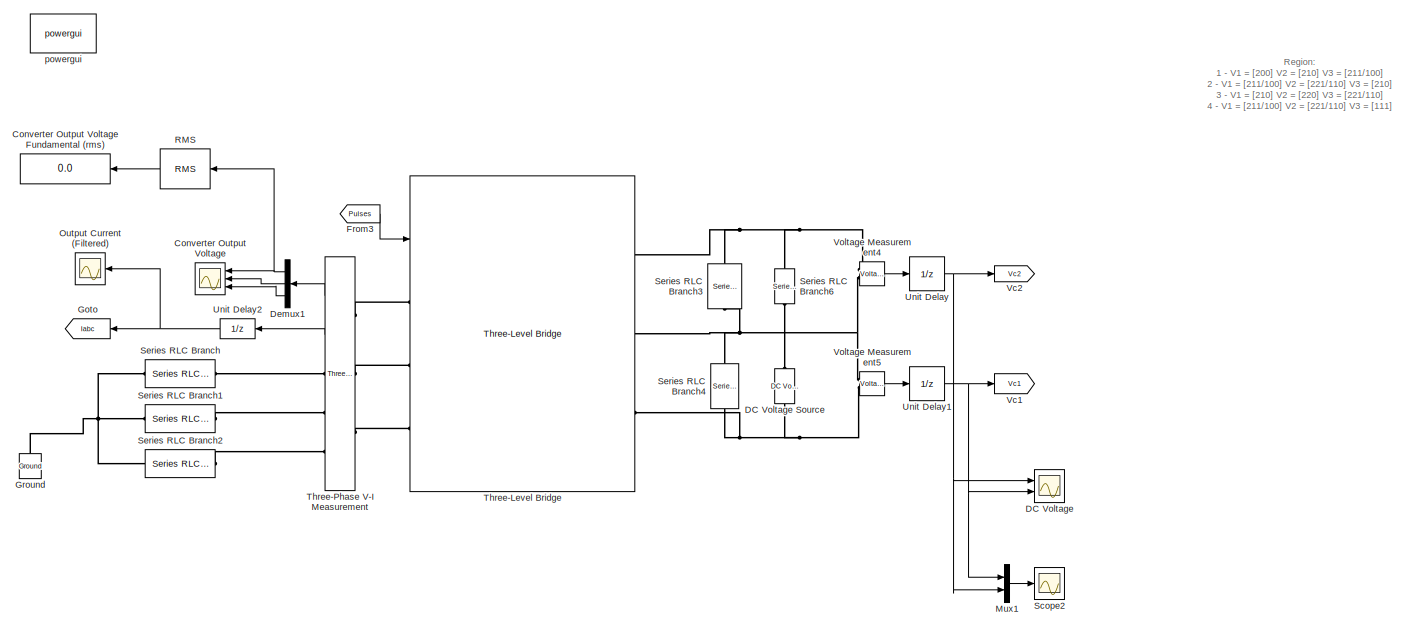
[diagram: root canvas - part 1/2, full width, top band]
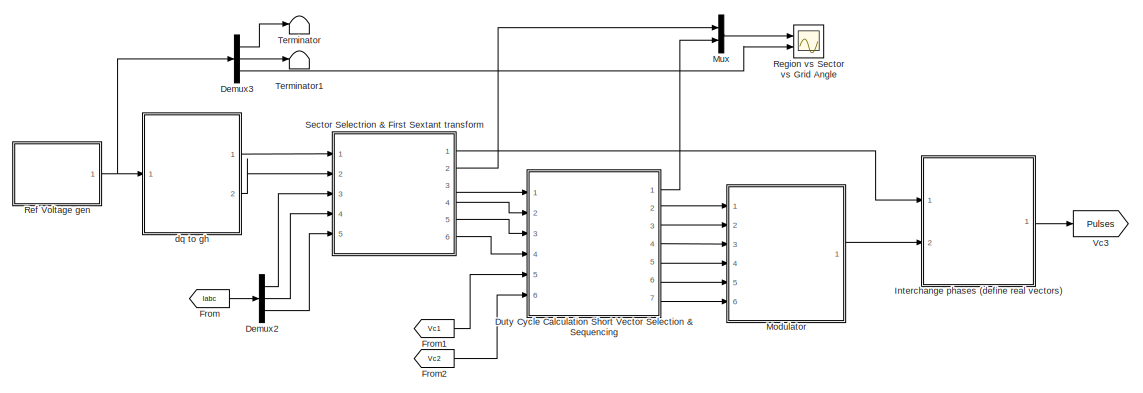
[diagram: root canvas - part 2/2, full width, bottom band]
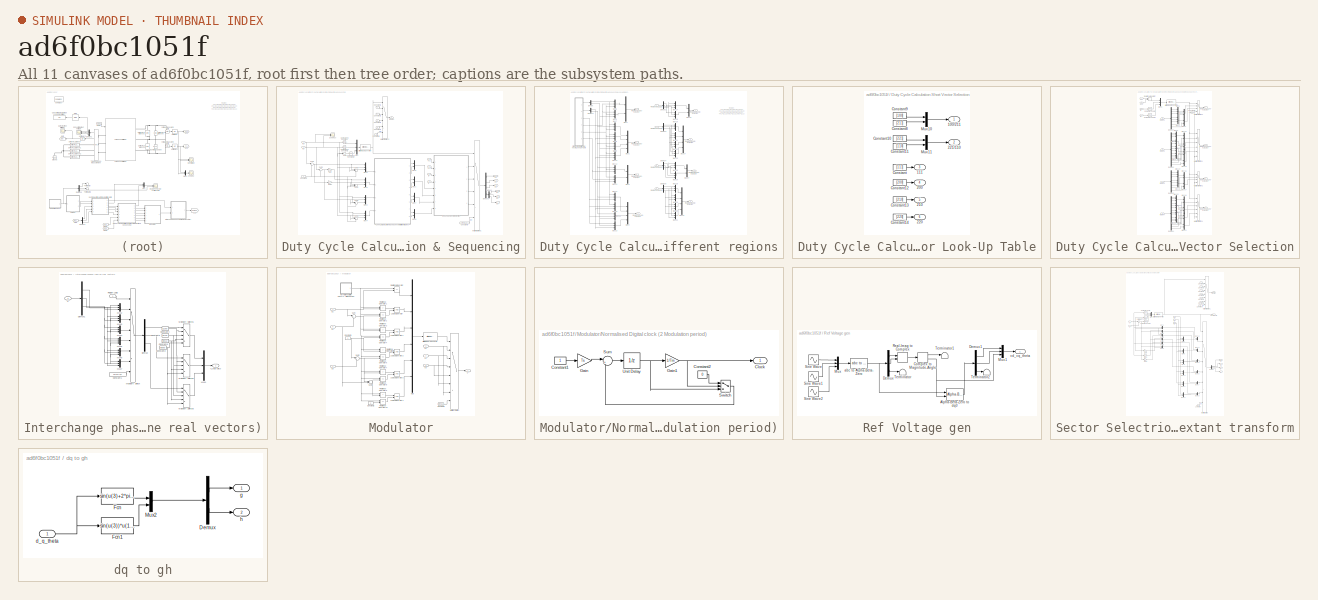
[diagram: thumbnail index - all 11 canvases of the model, root first then tree order]
MODEL slx_ad6f0bc1051f
KIND model
BLOCK [Scope] Converter Output Voltage
  DataFormat = StructureWithTime
  Floating = off
  LimitDataPoints = off
  NumInputPorts = 3
  Ports = [3]
  SampleTime = 0
  SaveName = Vph
  SaveToWorkspace = on
  ShowLegends = off
  YMax = 120~120~120
  YMin = -120~-120~-120
  ZoomMode = xonly
BLOCK [Display] Converter Output Voltage Fundamental (rms)
  Decimation = 1
  Lockdown = off
  Ports = [1]
BLOCK [Scope] DC Voltage
  DataFormat = StructureWithTime
  Floating = off
  LimitDataPoints = off
  NumInputPorts = 2
  Ports = [2]
  SampleTime = 0
  SaveName = ScopeData1
  ShowLegends = off
  YMax = 60.3~60.275
  YMin = 59.65~59.725
  ZoomMode = xonly
BLOCK [Reference] DC Voltage Source  REF=powerlib/Electrical
Sources/DC Voltage Source
  Amplitude = 120
  Measurements = None
  Ports = [0, 0, 0, 0, 0, 1, 1]
  SourceBlock = powerlib/Electrical\nSources/DC Voltage Source
  SourceType = DC Voltage Source
BLOCK [Demux] Demux1
  DisplayOption = bar
  Outputs = 3
  Ports = [1, 3]
BLOCK [Demux] Demux2
  DisplayOption = bar
  Outputs = 3
  Ports = [1, 3]
BLOCK [Demux] Demux3
  DisplayOption = bar
  Outputs = 3
  Ports = [1, 3]
BLOCK [SubSystem] Duty Cycle Calculation Short Vector Selection & Sequencing
  FunctionWithSeparateData = off
  MaskHideContents = off
  MinAlgLoopOccurrences = off
  Opaque = off
  Ports = [6, 7]
  PropExecContextOutsideSubsystem = off
  RTWSystemCode = Auto
  RequestExecContextInheritance = off
BLOCK [Reference] Duty Cycle Calculation Short Vector Selection & Sequencing/Bit to Integer Converter  REF=commutil2/Bit to Integer
Converter
  Ports = [1, 1]
  SourceBlock = commutil2/Bit to Integer\nConverter
  SourceType = Bit to Integer Converter
  bitOrder = MSB first
  nbits = 3
  outDtype = Inherit via internal rule
  outDtypeSigned = Inherit via internal rule
  signedOutputValues = Unsigned
BLOCK [Reference] Duty Cycle Calculation Short Vector Selection & Sequencing/Compare To Constant  REF=simulink/Logic and Bit
Operations/Compare
To Constant
  OutDataTypeStr = boolean
  Ports = [1, 1]
  SourceBlock = simulink/Logic and Bit\nOperations/Compare\nTo Constant
  SourceType = Compare To Constant
  ZeroCross = on
  const = 1
  relop = >
BLOCK [Reference] Duty Cycle Calculation Short Vector Selection & Sequencing/Compare To Constant1  REF=simulink/Logic and Bit
Operations/Compare
To Constant
  OutDataTypeStr = boolean
  Ports = [1, 1]
  SourceBlock = simulink/Logic and Bit\nOperations/Compare\nTo Constant
  SourceType = Compare To Constant
  ZeroCross = on
  const = 1
  relop = >
BLOCK [Reference] Duty Cycle Calculation Short Vector Selection & Sequencing/Compare To Constant2  REF=simulink/Logic and Bit
Operations/Compare
To Constant
  OutDataTypeStr = boolean
  Ports = [1, 1]
  SourceBlock = simulink/Logic and Bit\nOperations/Compare\nTo Constant
  SourceType = Compare To Constant
  ZeroCross = on
  const = 1
  relop = >
BLOCK [Constant] Duty Cycle Calculation Short Vector Selection & Sequencing/Constant1
BLOCK [Constant] Duty Cycle Calculation Short Vector Selection & Sequencing/Constant2
  Value = 2
BLOCK [Constant] Duty Cycle Calculation Short Vector Selection & Sequencing/Constant3
  Value = 3
BLOCK [Constant] Duty Cycle Calculation Short Vector Selection & Sequencing/Constant4
  Value = 4
BLOCK [Constant] Duty Cycle Calculation Short Vector Selection & Sequencing/Constant5
  Value = 0
BLOCK [Constant] Duty Cycle Calculation Short Vector Selection & Sequencing/Constant6
  Value = zeros(1,12)
BLOCK [Constant] Duty Cycle Calculation Short Vector Selection & Sequencing/Constant7
BLOCK [Demux] Duty Cycle Calculation Short Vector Selection & Sequencing/Demux1
  DisplayOption = bar
  Ports = [1, 4]
BLOCK [Demux] Duty Cycle Calculation Short Vector Selection & Sequencing/Demux3
  DisplayOption = bar
  Outputs = 3
  Ports = [1, 3]
BLOCK [Gain] Duty Cycle Calculation Short Vector Selection & Sequencing/Gain
  Gain = -1
  OutDataTypeStr = Inherit: Inherit via internal rule
  ParamDataTypeStr = Inherit: Inherit via internal rule
  SaturateOnIntegerOverflow = off
BLOCK [Gain] Duty Cycle Calculation Short Vector Selection & Sequencing/Gain1
  Gain = -1
  OutDataTypeStr = Inherit: Inherit via internal rule
  ParamDataTypeStr = Inherit: Inherit via internal rule
  SaturateOnIntegerOverflow = off
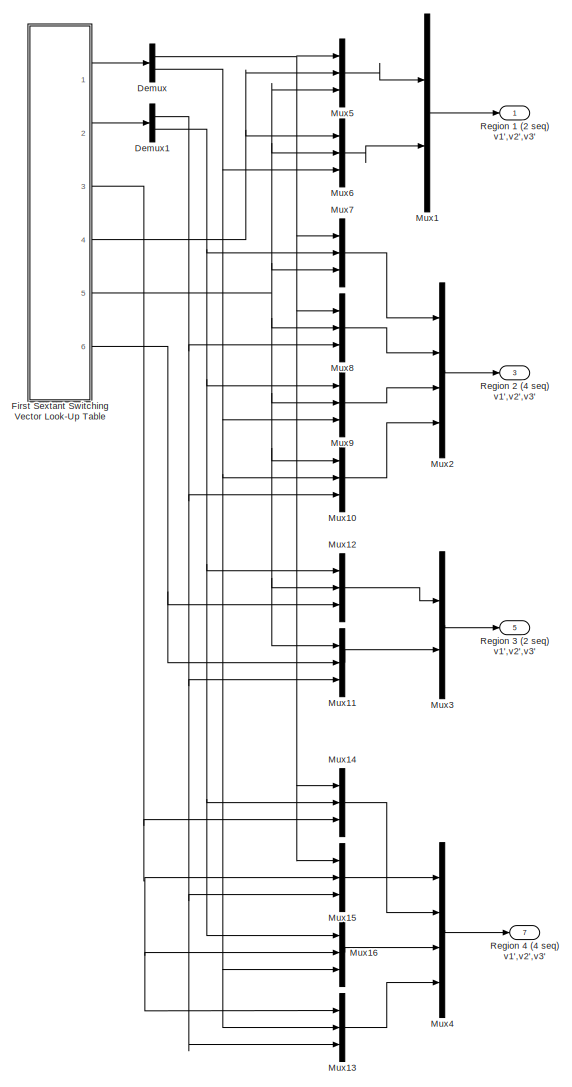
[diagram: Duty Cycle Calculation Short Vector Selection & Sequencing/Look Up table Switching sequence for different regions - part 1/2, left side, full height]
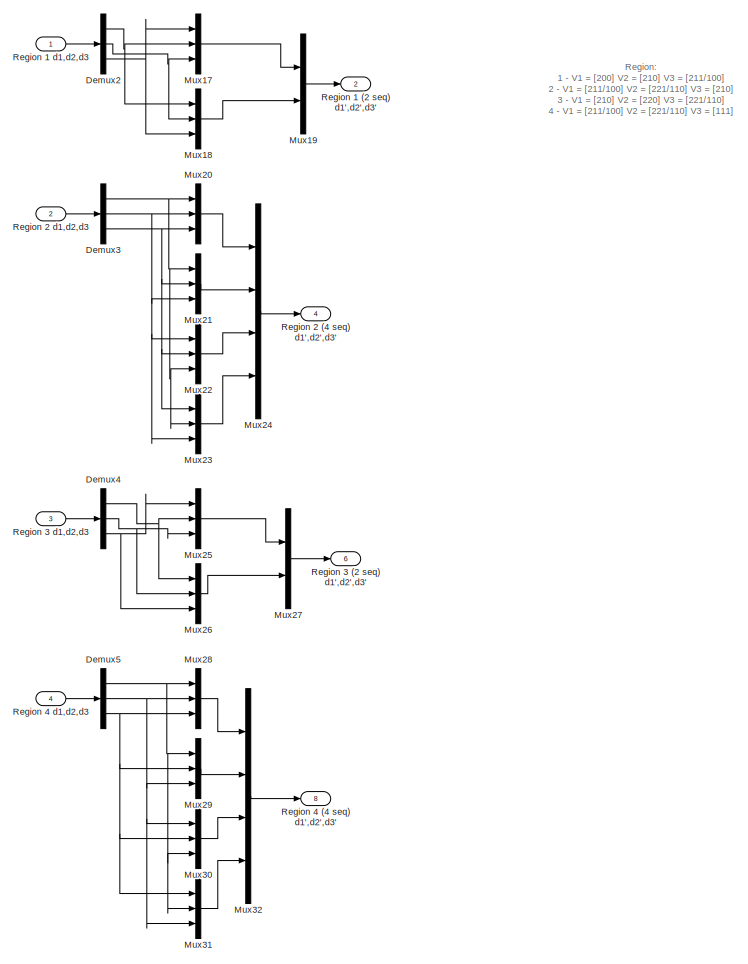
[diagram: Duty Cycle Calculation Short Vector Selection & Sequencing/Look Up table Switching sequence for different regions - part 2/2, right side, full height]
BLOCK [SubSystem] Duty Cycle Calculation Short Vector Selection & Sequencing/Look Up table Switching sequence for different regions
  FunctionWithSeparateData = off
  MaskHideContents = off
  MinAlgLoopOccurrences = off
  Opaque = off
  Ports = [4, 8]
  PropExecContextOutsideSubsystem = off
  RTWSystemCode = Auto
  RequestExecContextInheritance = off
BLOCK [Demux] Duty Cycle Calculation Short Vector Selection & Sequencing/Look Up table Switching sequence for different regions/Demux
  DisplayOption = bar
  Outputs = 2
  Ports = [1, 2]
BLOCK [Demux] Duty Cycle Calculation Short Vector Selection & Sequencing/Look Up table Switching sequence for different regions/Demux1
  DisplayOption = bar
  Outputs = 2
  Ports = [1, 2]
BLOCK [Demux] Duty Cycle Calculation Short Vector Selection & Sequencing/Look Up table Switching sequence for different regions/Demux2
  DisplayOption = bar
  Outputs = 3
  Ports = [1, 3]
BLOCK [Demux] Duty Cycle Calculation Short Vector Selection & Sequencing/Look Up table Switching sequence for different regions/Demux3
  DisplayOption = bar
  Outputs = 3
  Ports = [1, 3]
BLOCK [Demux] Duty Cycle Calculation Short Vector Selection & Sequencing/Look Up table Switching sequence for different regions/Demux4
  DisplayOption = bar
  Outputs = 3
  Ports = [1, 3]
BLOCK [Demux] Duty Cycle Calculation Short Vector Selection & Sequencing/Look Up table Switching sequence for different regions/Demux5
  DisplayOption = bar
  Outputs = 3
  Ports = [1, 3]
BLOCK [SubSystem] Duty Cycle Calculation Short Vector Selection & Sequencing/Look Up table Switching sequence for different regions/First Sextant Switching Vector Look-Up Table
  FunctionWithSeparateData = off
  MaskHideContents = off
  MinAlgLoopOccurrences = off
  Opaque = off
  Ports = [0, 6]
  PropExecContextOutsideSubsystem = off
  RTWSystemCode = Auto
  RequestExecContextInheritance = off
BLOCK [Outport] Duty Cycle Calculation Short Vector Selection & Sequencing/Look Up table Switching sequence for different regions/First Sextant Switching Vector Look-Up Table/100//211
  IconDisplay = Port number
BLOCK [Outport] Duty Cycle Calculation Short Vector Selection & Sequencing/Look Up table Switching sequence for different regions/First Sextant Switching Vector Look-Up Table/111
  IconDisplay = Port number
  Port = 3
BLOCK [Outport] Duty Cycle Calculation Short Vector Selection & Sequencing/Look Up table Switching sequence for different regions/First Sextant Switching Vector Look-Up Table/200
  IconDisplay = Port number
  Port = 4
BLOCK [Outport] Duty Cycle Calculation Short Vector Selection & Sequencing/Look Up table Switching sequence for different regions/First Sextant Switching Vector Look-Up Table/210
  IconDisplay = Port number
  Port = 5
BLOCK [Outport] Duty Cycle Calculation Short Vector Selection & Sequencing/Look Up table Switching sequence for different regions/First Sextant Switching Vector Look-Up Table/220
  IconDisplay = Port number
  Port = 6
BLOCK [Outport] Duty Cycle Calculation Short Vector Selection & Sequencing/Look Up table Switching sequence for different regions/First Sextant Switching Vector Look-Up Table/221//110
  IconDisplay = Port number
  Port = 2
BLOCK [Constant] Duty Cycle Calculation Short Vector Selection & Sequencing/Look Up table Switching sequence for different regions/First Sextant Switching Vector Look-Up Table/Constant
  Value = [1 1 1]
BLOCK [Constant] Duty Cycle Calculation Short Vector Selection & Sequencing/Look Up table Switching sequence for different regions/First Sextant Switching Vector Look-Up Table/Constant10
  Value = [2 2 1]
BLOCK [Constant] Duty Cycle Calculation Short Vector Selection & Sequencing/Look Up table Switching sequence for different regions/First Sextant Switching Vector Look-Up Table/Constant11
  Value = [1 1 0]
BLOCK [Constant] Duty Cycle Calculation Short Vector Selection & Sequencing/Look Up table Switching sequence for different regions/First Sextant Switching Vector Look-Up Table/Constant12
  Value = [2 0 0]
BLOCK [Constant] Duty Cycle Calculation Short Vector Selection & Sequencing/Look Up table Switching sequence for different regions/First Sextant Switching Vector Look-Up Table/Constant13
  Value = [2 1 0]
BLOCK [Constant] Duty Cycle Calculation Short Vector Selection & Sequencing/Look Up table Switching sequence for different regions/First Sextant Switching Vector Look-Up Table/Constant14
  Value = [2 2 0]
BLOCK [Constant] Duty Cycle Calculation Short Vector Selection & Sequencing/Look Up table Switching sequence for different regions/First Sextant Switching Vector Look-Up Table/Constant8
  Value = [2 1 1]
BLOCK [Constant] Duty Cycle Calculation Short Vector Selection & Sequencing/Look Up table Switching sequence for different regions/First Sextant Switching Vector Look-Up Table/Constant9
  Value = [1 0 0]
BLOCK [Mux] Duty Cycle Calculation Short Vector Selection & Sequencing/Look Up table Switching sequence for different regions/First Sextant Switching Vector Look-Up Table/Mux10
  DisplayOption = bar
  Inputs = 2
  Ports = [2, 1]
BLOCK [Mux] Duty Cycle Calculation Short Vector Selection & Sequencing/Look Up table Switching sequence for different regions/First Sextant Switching Vector Look-Up Table/Mux11
  DisplayOption = bar
  Inputs = 2
  Ports = [2, 1]
BLOCK [Mux] Duty Cycle Calculation Short Vector Selection & Sequencing/Look Up table Switching sequence for different regions/Mux1
  DisplayOption = bar
  Inputs = 2
  Ports = [2, 1]
BLOCK [Mux] Duty Cycle Calculation Short Vector Selection & Sequencing/Look Up table Switching sequence for different regions/Mux10
  DisplayOption = bar
  Inputs = 3
  Ports = [3, 1]
BLOCK [Mux] Duty Cycle Calculation Short Vector Selection & Sequencing/Look Up table Switching sequence for different regions/Mux11
  DisplayOption = bar
  Inputs = 3
  Ports = [3, 1]
BLOCK [Mux] Duty Cycle Calculation Short Vector Selection & Sequencing/Look Up table Switching sequence for different regions/Mux12
  DisplayOption = bar
  Inputs = 3
  Ports = [3, 1]
BLOCK [Mux] Duty Cycle Calculation Short Vector Selection & Sequencing/Look Up table Switching sequence for different regions/Mux13
  DisplayOption = bar
  Inputs = 3
  Ports = [3, 1]
BLOCK [Mux] Duty Cycle Calculation Short Vector Selection & Sequencing/Look Up table Switching sequence for different regions/Mux14
  DisplayOption = bar
  Inputs = 3
  Ports = [3, 1]
BLOCK [Mux] Duty Cycle Calculation Short Vector Selection & Sequencing/Look Up table Switching sequence for different regions/Mux15
  DisplayOption = bar
  Inputs = 3
  Ports = [3, 1]
BLOCK [Mux] Duty Cycle Calculation Short Vector Selection & Sequencing/Look Up table Switching sequence for different regions/Mux16
  DisplayOption = bar
  Inputs = 3
  Ports = [3, 1]
BLOCK [Mux] Duty Cycle Calculation Short Vector Selection & Sequencing/Look Up table Switching sequence for different regions/Mux17
  DisplayOption = bar
  Inputs = 3
  Ports = [3, 1]
BLOCK [Mux] Duty Cycle Calculation Short Vector Selection & Sequencing/Look Up table Switching sequence for different regions/Mux18
  DisplayOption = bar
  Inputs = 3
  Ports = [3, 1]
BLOCK [Mux] Duty Cycle Calculation Short Vector Selection & Sequencing/Look Up table Switching sequence for different regions/Mux19
  DisplayOption = bar
  Inputs = 2
  Ports = [2, 1]
BLOCK [Mux] Duty Cycle Calculation Short Vector Selection & Sequencing/Look Up table Switching sequence for different regions/Mux2
  DisplayOption = bar
  Ports = [4, 1]
BLOCK [Mux] Duty Cycle Calculation Short Vector Selection & Sequencing/Look Up table Switching sequence for different regions/Mux20
  DisplayOption = bar
  Inputs = 3
  Ports = [3, 1]
BLOCK [Mux] Duty Cycle Calculation Short Vector Selection & Sequencing/Look Up table Switching sequence for different regions/Mux21
  DisplayOption = bar
  Inputs = 3
  Ports = [3, 1]
BLOCK [Mux] Duty Cycle Calculation Short Vector Selection & Sequencing/Look Up table Switching sequence for different regions/Mux22
  DisplayOption = bar
  Inputs = 3
  Ports = [3, 1]
BLOCK [Mux] Duty Cycle Calculation Short Vector Selection & Sequencing/Look Up table Switching sequence for different regions/Mux23
  DisplayOption = bar
  Inputs = 3
  Ports = [3, 1]
BLOCK [Mux] Duty Cycle Calculation Short Vector Selection & Sequencing/Look Up table Switching sequence for different regions/Mux24
  DisplayOption = bar
  Ports = [4, 1]
BLOCK [Mux] Duty Cycle Calculation Short Vector Selection & Sequencing/Look Up table Switching sequence for different regions/Mux25
  DisplayOption = bar
  Inputs = 3
  Ports = [3, 1]
BLOCK [Mux] Duty Cycle Calculation Short Vector Selection & Sequencing/Look Up table Switching sequence for different regions/Mux26
  DisplayOption = bar
  Inputs = 3
  Ports = [3, 1]
BLOCK [Mux] Duty Cycle Calculation Short Vector Selection & Sequencing/Look Up table Switching sequence for different regions/Mux27
  DisplayOption = bar
  Inputs = 2
  Ports = [2, 1]
BLOCK [Mux] Duty Cycle Calculation Short Vector Selection & Sequencing/Look Up table Switching sequence for different regions/Mux28
  DisplayOption = bar
  Inputs = 3
  Ports = [3, 1]
BLOCK [Mux] Duty Cycle Calculation Short Vector Selection & Sequencing/Look Up table Switching sequence for different regions/Mux29
  DisplayOption = bar
  Inputs = 3
  Ports = [3, 1]
BLOCK [Mux] Duty Cycle Calculation Short Vector Selection & Sequencing/Look Up table Switching sequence for different regions/Mux3
  DisplayOption = bar
  Inputs = 2
  Ports = [2, 1]
BLOCK [Mux] Duty Cycle Calculation Short Vector Selection & Sequencing/Look Up table Switching sequence for different regions/Mux30
  DisplayOption = bar
  Inputs = 3
  Ports = [3, 1]
BLOCK [Mux] Duty Cycle Calculation Short Vector Selection & Sequencing/Look Up table Switching sequence for different regions/Mux31
  DisplayOption = bar
  Inputs = 3
  Ports = [3, 1]
BLOCK [Mux] Duty Cycle Calculation Short Vector Selection & Sequencing/Look Up table Switching sequence for different regions/Mux32
  DisplayOption = bar
  Ports = [4, 1]
BLOCK [Mux] Duty Cycle Calculation Short Vector Selection & Sequencing/Look Up table Switching sequence for different regions/Mux4
  DisplayOption = bar
  Ports = [4, 1]
BLOCK [Mux] Duty Cycle Calculation Short Vector Selection & Sequencing/Look Up table Switching sequence for different regions/Mux5
  DisplayOption = bar
  Inputs = 3
  Ports = [3, 1]
BLOCK [Mux] Duty Cycle Calculation Short Vector Selection & Sequencing/Look Up table Switching sequence for different regions/Mux6
  DisplayOption = bar
  Inputs = 3
  Ports = [3, 1]
BLOCK [Mux] Duty Cycle Calculation Short Vector Selection & Sequencing/Look Up table Switching sequence for different regions/Mux7
  DisplayOption = bar
  Inputs = 3
  Ports = [3, 1]
BLOCK [Mux] Duty Cycle Calculation Short Vector Selection & Sequencing/Look Up table Switching sequence for different regions/Mux8
  DisplayOption = bar
  Inputs = 3
  Ports = [3, 1]
BLOCK [Mux] Duty Cycle Calculation Short Vector Selection & Sequencing/Look Up table Switching sequence for different regions/Mux9
  DisplayOption = bar
  Inputs = 3
  Ports = [3, 1]
BLOCK [Outport] Duty Cycle Calculation Short Vector Selection & Sequencing/Look Up table Switching sequence for different regions/Region 1 (2 seq) d1',d2',d3'
  IconDisplay = Port number
  Port = 2
BLOCK [Outport] Duty Cycle Calculation Short Vector Selection & Sequencing/Look Up table Switching sequence for different regions/Region 1 (2 seq) v1',v2',v3'
  IconDisplay = Port number
BLOCK [Inport] Duty Cycle Calculation Short Vector Selection & Sequencing/Look Up table Switching sequence for different regions/Region 1 d1,d2,d3
  IconDisplay = Port number
BLOCK [Outport] Duty Cycle Calculation Short Vector Selection & Sequencing/Look Up table Switching sequence for different regions/Region 2 (4 seq) d1',d2',d3'
  IconDisplay = Port number
  Port = 4
BLOCK [Outport] Duty Cycle Calculation Short Vector Selection & Sequencing/Look Up table Switching sequence for different regions/Region 2 (4 seq) v1',v2',v3'
  IconDisplay = Port number
  Port = 3
BLOCK [Inport] Duty Cycle Calculation Short Vector Selection & Sequencing/Look Up table Switching sequence for different regions/Region 2 d1,d2,d3
  IconDisplay = Port number
  Port = 2
BLOCK [Outport] Duty Cycle Calculation Short Vector Selection & Sequencing/Look Up table Switching sequence for different regions/Region 3 (2 seq) d1',d2',d3'
  IconDisplay = Port number
  Port = 6
BLOCK [Outport] Duty Cycle Calculation Short Vector Selection & Sequencing/Look Up table Switching sequence for different regions/Region 3 (2 seq) v1',v2',v3'
  IconDisplay = Port number
  Port = 5
BLOCK [Inport] Duty Cycle Calculation Short Vector Selection & Sequencing/Look Up table Switching sequence for different regions/Region 3 d1,d2,d3
  IconDisplay = Port number
  Port = 3
BLOCK [Outport] Duty Cycle Calculation Short Vector Selection & Sequencing/Look Up table Switching sequence for different regions/Region 4 (4 seq) d1',d2',d3'
  IconDisplay = Port number
  Port = 8
BLOCK [Outport] Duty Cycle Calculation Short Vector Selection & Sequencing/Look Up table Switching sequence for different regions/Region 4 (4 seq) v1',v2',v3'
  IconDisplay = Port number
  Port = 7
BLOCK [Inport] Duty Cycle Calculation Short Vector Selection & Sequencing/Look Up table Switching sequence for different regions/Region 4 d1,d2,d3
  IconDisplay = Port number
  Port = 4
BLOCK [MultiPortSwitch] Duty Cycle Calculation Short Vector Selection & Sequencing/Multiport Switch1
  DataPortIndices = {5,1,3,0,[2,4,6,7]}
  DataPortOrder = Specify indices
  InputSameDT = off
  Inputs = 6
  Ports = [6, 1]
  SaturateOnIntegerOverflow = off
BLOCK [MultiPortSwitch] Duty Cycle Calculation Short Vector Selection & Sequencing/Multiport Switch2
  DataPortIndices = {5,1,3,0,[2,4,6,7]}
  DataPortOrder = Specify indices
  InputSameDT = off
  Inputs = 6
  Ports = [6, 1]
  SaturateOnIntegerOverflow = off
BLOCK [Mux] Duty Cycle Calculation Short Vector Selection & Sequencing/Mux
  DisplayOption = bar
  Inputs = 3
  Ports = [3, 1]
BLOCK [Mux] Duty Cycle Calculation Short Vector Selection & Sequencing/Mux1
  DisplayOption = bar
  Inputs = 2
  Ports = [2, 1]
BLOCK [Mux] Duty Cycle Calculation Short Vector Selection & Sequencing/Mux2
  DisplayOption = bar
  Inputs = 3
  Ports = [3, 1]
BLOCK [Mux] Duty Cycle Calculation Short Vector Selection & Sequencing/Mux3
  DisplayOption = bar
  Inputs = 3
  Ports = [3, 1]
BLOCK [Mux] Duty Cycle Calculation Short Vector Selection & Sequencing/Mux4
  DisplayOption = bar
  Inputs = 3
  Ports = [3, 1]
BLOCK [Mux] Duty Cycle Calculation Short Vector Selection & Sequencing/Mux5
  DisplayOption = bar
  Inputs = 2
  Ports = [2, 1]
BLOCK [Mux] Duty Cycle Calculation Short Vector Selection & Sequencing/Mux6
  DisplayOption = bar
  Inputs = 3
  Ports = [3, 1]
BLOCK [Mux] Duty Cycle Calculation Short Vector Selection & Sequencing/Mux7
  DisplayOption = bar
  Inputs = 2
  Ports = [2, 1]
BLOCK [Mux] Duty Cycle Calculation Short Vector Selection & Sequencing/Mux8
  DisplayOption = bar
  Inputs = 2
  Ports = [2, 1]
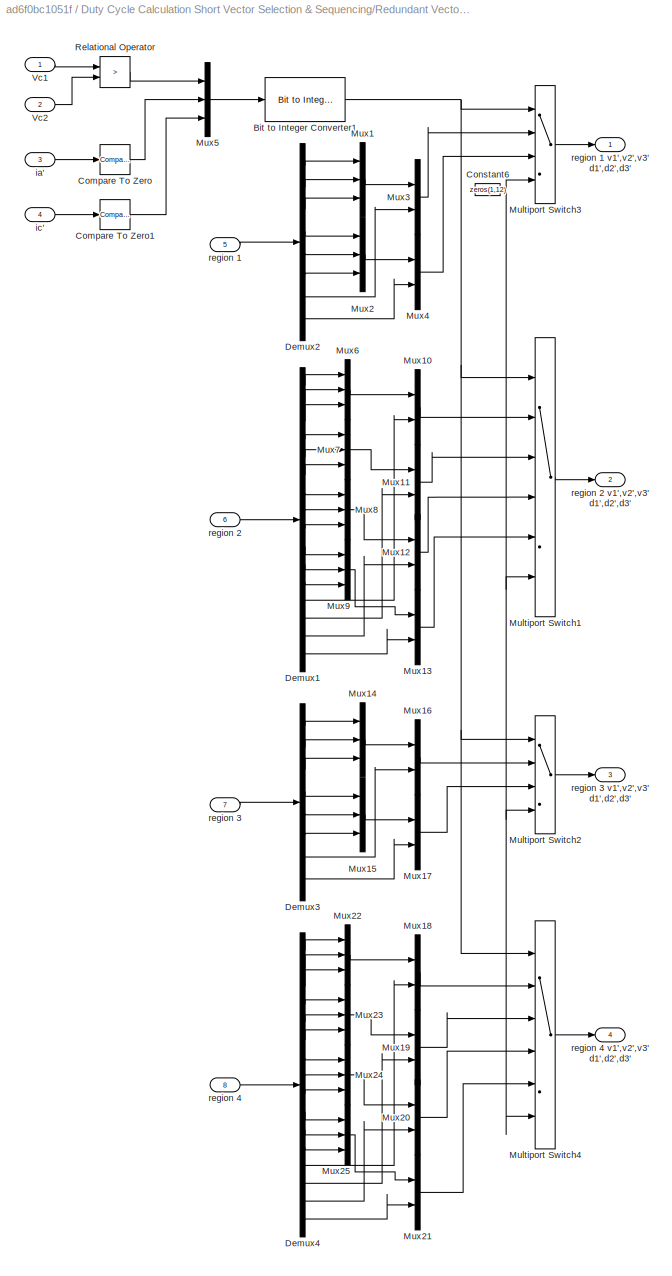
BLOCK [SubSystem] Duty Cycle Calculation Short Vector Selection & Sequencing/Redundant Vector Selection
  FunctionWithSeparateData = off
  MaskHideContents = off
  MinAlgLoopOccurrences = off
  Opaque = off
  Ports = [8, 4]
  PropExecContextOutsideSubsystem = off
  RTWSystemCode = Auto
  RequestExecContextInheritance = off
BLOCK [Reference] Duty Cycle Calculation Short Vector Selection & Sequencing/Redundant Vector Selection/Bit to Integer Converter1  REF=commutil2/Bit to Integer
Converter
  Ports = [1, 1]
  SourceBlock = commutil2/Bit to Integer\nConverter
  SourceType = Bit to Integer Converter
  bitOrder = MSB first
  nbits = 3
  outDtype = Inherit via internal rule
  outDtypeSigned = Inherit via internal rule
  signedOutputValues = Unsigned
BLOCK [Reference] Duty Cycle Calculation Short Vector Selection & Sequencing/Redundant Vector Selection/Compare To Zero  REF=simulink/Logic and Bit
Operations/Compare
To Zero
  OutDataTypeStr = boolean
  Ports = [1, 1]
  SourceBlock = simulink/Logic and Bit\nOperations/Compare\nTo Zero
  SourceType = Compare To Zero
  ZeroCross = on
  relop = >
BLOCK [Reference] Duty Cycle Calculation Short Vector Selection & Sequencing/Redundant Vector Selection/Compare To Zero1  REF=simulink/Logic and Bit
Operations/Compare
To Zero
  OutDataTypeStr = boolean
  Ports = [1, 1]
  SourceBlock = simulink/Logic and Bit\nOperations/Compare\nTo Zero
  SourceType = Compare To Zero
  ZeroCross = on
  relop = >
BLOCK [Constant] Duty Cycle Calculation Short Vector Selection & Sequencing/Redundant Vector Selection/Constant6
  Value = zeros(1,12)
BLOCK [Demux] Duty Cycle Calculation Short Vector Selection & Sequencing/Redundant Vector Selection/Demux1
  DisplayOption = bar
  Outputs = 16
  Ports = [1, 16]
BLOCK [Demux] Duty Cycle Calculation Short Vector Selection & Sequencing/Redundant Vector Selection/Demux2
  DisplayOption = bar
  Outputs = 8
  Ports = [1, 8]
BLOCK [Demux] Duty Cycle Calculation Short Vector Selection & Sequencing/Redundant Vector Selection/Demux3
  DisplayOption = bar
  Outputs = 8
  Ports = [1, 8]
BLOCK [Demux] Duty Cycle Calculation Short Vector Selection & Sequencing/Redundant Vector Selection/Demux4
  DisplayOption = bar
  Outputs = 16
  Ports = [1, 16]
BLOCK [MultiPortSwitch] Duty Cycle Calculation Short Vector Selection & Sequencing/Redundant Vector Selection/Multiport Switch1
  DataPortForDefault = Additional data port
  DataPortIndices = {[1,6],[0,7],[3,4],[2,5]}
  DataPortOrder = Specify indices
  InputSameDT = off
  Inputs = 6
  Ports = [6, 1]
  SaturateOnIntegerOverflow = off
BLOCK [MultiPortSwitch] Duty Cycle Calculation Short Vector Selection & Sequencing/Redundant Vector Selection/Multiport Switch2
  DataPortForDefault = Additional data port
  DataPortIndices = {[1,3,4,6],[0,2,5,7]}
  DataPortOrder = Specify indices
  InputSameDT = off
  Inputs = 6
  Ports = [4, 1]
  SaturateOnIntegerOverflow = off
BLOCK [MultiPortSwitch] Duty Cycle Calculation Short Vector Selection & Sequencing/Redundant Vector Selection/Multiport Switch3
  DataPortForDefault = Additional data port
  DataPortIndices = {[0,1,6,7],[2,3,4,5]}
  DataPortOrder = Specify indices
  InputSameDT = off
  Inputs = 6
  Ports = [4, 1]
  SaturateOnIntegerOverflow = off
BLOCK [MultiPortSwitch] Duty Cycle Calculation Short Vector Selection & Sequencing/Redundant Vector Selection/Multiport Switch4
  DataPortForDefault = Additional data port
  DataPortIndices = {[1,6],[0,7],[3,4],[2,5]}
  DataPortOrder = Specify indices
  InputSameDT = off
  Inputs = 6
  Ports = [6, 1]
  SaturateOnIntegerOverflow = off
BLOCK [Mux] Duty Cycle Calculation Short Vector Selection & Sequencing/Redundant Vector Selection/Mux1
  DisplayOption = bar
  Inputs = 3
  Ports = [3, 1]
BLOCK [Mux] Duty Cycle Calculation Short Vector Selection & Sequencing/Redundant Vector Selection/Mux10
  DisplayOption = bar
  Inputs = 2
  Ports = [2, 1]
BLOCK [Mux] Duty Cycle Calculation Short Vector Selection & Sequencing/Redundant Vector Selection/Mux11
  DisplayOption = bar
  Inputs = 2
  Ports = [2, 1]
BLOCK [Mux] Duty Cycle Calculation Short Vector Selection & Sequencing/Redundant Vector Selection/Mux12
  DisplayOption = bar
  Inputs = 2
  Ports = [2, 1]
BLOCK [Mux] Duty Cycle Calculation Short Vector Selection & Sequencing/Redundant Vector Selection/Mux13
  DisplayOption = bar
  Inputs = 2
  Ports = [2, 1]
BLOCK [Mux] Duty Cycle Calculation Short Vector Selection & Sequencing/Redundant Vector Selection/Mux14
  DisplayOption = bar
  Inputs = 3
  Ports = [3, 1]
BLOCK [Mux] Duty Cycle Calculation Short Vector Selection & Sequencing/Redundant Vector Selection/Mux15
  DisplayOption = bar
  Inputs = 3
  Ports = [3, 1]
BLOCK [Mux] Duty Cycle Calculation Short Vector Selection & Sequencing/Redundant Vector Selection/Mux16
  DisplayOption = bar
  Inputs = 2
  Ports = [2, 1]
BLOCK [Mux] Duty Cycle Calculation Short Vector Selection & Sequencing/Redundant Vector Selection/Mux17
  DisplayOption = bar
  Inputs = 2
  Ports = [2, 1]
BLOCK [Mux] Duty Cycle Calculation Short Vector Selection & Sequencing/Redundant Vector Selection/Mux18
  DisplayOption = bar
  Inputs = 2
  Ports = [2, 1]
BLOCK [Mux] Duty Cycle Calculation Short Vector Selection & Sequencing/Redundant Vector Selection/Mux19
  DisplayOption = bar
  Inputs = 2
  Ports = [2, 1]
BLOCK [Mux] Duty Cycle Calculation Short Vector Selection & Sequencing/Redundant Vector Selection/Mux2
  DisplayOption = bar
  Inputs = 3
  Ports = [3, 1]
BLOCK [Mux] Duty Cycle Calculation Short Vector Selection & Sequencing/Redundant Vector Selection/Mux20
  DisplayOption = bar
  Inputs = 2
  Ports = [2, 1]
BLOCK [Mux] Duty Cycle Calculation Short Vector Selection & Sequencing/Redundant Vector Selection/Mux21
  DisplayOption = bar
  Inputs = 2
  Ports = [2, 1]
BLOCK [Mux] Duty Cycle Calculation Short Vector Selection & Sequencing/Redundant Vector Selection/Mux22
  DisplayOption = bar
  Inputs = 3
  Ports = [3, 1]
BLOCK [Mux] Duty Cycle Calculation Short Vector Selection & Sequencing/Redundant Vector Selection/Mux23
  DisplayOption = bar
  Inputs = 3
  Ports = [3, 1]
BLOCK [Mux] Duty Cycle Calculation Short Vector Selection & Sequencing/Redundant Vector Selection/Mux24
  DisplayOption = bar
  Inputs = 3
  Ports = [3, 1]
BLOCK [Mux] Duty Cycle Calculation Short Vector Selection & Sequencing/Redundant Vector Selection/Mux25
  DisplayOption = bar
  Inputs = 3
  Ports = [3, 1]
BLOCK [Mux] Duty Cycle Calculation Short Vector Selection & Sequencing/Redundant Vector Selection/Mux3
  DisplayOption = bar
  Inputs = 2
  Ports = [2, 1]
BLOCK [Mux] Duty Cycle Calculation Short Vector Selection & Sequencing/Redundant Vector Selection/Mux4
  DisplayOption = bar
  Inputs = 2
  Ports = [2, 1]
BLOCK [Mux] Duty Cycle Calculation Short Vector Selection & Sequencing/Redundant Vector Selection/Mux5
  DisplayOption = bar
  Inputs = 3
  Ports = [3, 1]
BLOCK [Mux] Duty Cycle Calculation Short Vector Selection & Sequencing/Redundant Vector Selection/Mux6
  DisplayOption = bar
  Inputs = 3
  Ports = [3, 1]
BLOCK [Mux] Duty Cycle Calculation Short Vector Selection & Sequencing/Redundant Vector Selection/Mux7
  DisplayOption = bar
  Inputs = 3
  Ports = [3, 1]
BLOCK [Mux] Duty Cycle Calculation Short Vector Selection & Sequencing/Redundant Vector Selection/Mux8
  DisplayOption = bar
  Inputs = 3
  Ports = [3, 1]
BLOCK [Mux] Duty Cycle Calculation Short Vector Selection & Sequencing/Redundant Vector Selection/Mux9
  DisplayOption = bar
  Inputs = 3
  Ports = [3, 1]
BLOCK [RelationalOperator] Duty Cycle Calculation Short Vector Selection & Sequencing/Redundant Vector Selection/Relational Operator
  InputSameDT = off
  Operator = >
  OutDataTypeStr = boolean
  Ports = [2, 1]
BLOCK [Inport] Duty Cycle Calculation Short Vector Selection & Sequencing/Redundant Vector Selection/Vc1
  IconDisplay = Port number
BLOCK [Inport] Duty Cycle Calculation Short Vector Selection & Sequencing/Redundant Vector Selection/Vc2
  IconDisplay = Port number
  Port = 2
BLOCK [Inport] Duty Cycle Calculation Short Vector Selection & Sequencing/Redundant Vector Selection/ia'
  IconDisplay = Port number
  Port = 3
BLOCK [Inport] Duty Cycle Calculation Short Vector Selection & Sequencing/Redundant Vector Selection/ic'
  IconDisplay = Port number
  Port = 4
BLOCK [Inport] Duty Cycle Calculation Short Vector Selection & Sequencing/Redundant Vector Selection/region 1
  IconDisplay = Port number
  Port = 5
BLOCK [Outport] Duty Cycle Calculation Short Vector Selection & Sequencing/Redundant Vector Selection/region 1 v1',v2',v3' d1',d2',d3'
  IconDisplay = Port number
BLOCK [Inport] Duty Cycle Calculation Short Vector Selection & Sequencing/Redundant Vector Selection/region 2
  IconDisplay = Port number
  Port = 6
BLOCK [Outport] Duty Cycle Calculation Short Vector Selection & Sequencing/Redundant Vector Selection/region 2 v1',v2',v3' d1',d2',d3'
  IconDisplay = Port number
  Port = 2
BLOCK [Inport] Duty Cycle Calculation Short Vector Selection & Sequencing/Redundant Vector Selection/region 3
  IconDisplay = Port number
  Port = 7
BLOCK [Outport] Duty Cycle Calculation Short Vector Selection & Sequencing/Redundant Vector Selection/region 3 v1',v2',v3' d1',d2',d3'
  IconDisplay = Port number
  Port = 3
BLOCK [Inport] Duty Cycle Calculation Short Vector Selection & Sequencing/Redundant Vector Selection/region 4
  IconDisplay = Port number
  Port = 8
BLOCK [Outport] Duty Cycle Calculation Short Vector Selection & Sequencing/Redundant Vector Selection/region 4 v1',v2',v3' d1',d2',d3'
  IconDisplay = Port number
  Port = 4
BLOCK [Outport] Duty Cycle Calculation Short Vector Selection & Sequencing/Region
  IconDisplay = Port number
BLOCK [Scope] Duty Cycle Calculation Short Vector Selection & Sequencing/Scope10
  DataFormat = StructureWithTime
  Floating = off
  LimitDataPoints = off
  NumInputPorts = 2
  Ports = [2]
  SampleTime = 0
  SaveName = ScopeData17
  ShowLegends = off
  YMax = 1.75~5
  YMin = 0~-5
  ZoomMode = xonly
BLOCK [Sum] Duty Cycle Calculation Short Vector Selection & Sequencing/Sum
  IconShape = round
  InputSameDT = off
  Inputs = |++
  OutDataTypeStr = Inherit: Inherit via internal rule
  Ports = [2, 1]
  SaturateOnIntegerOverflow = off
BLOCK [Sum] Duty Cycle Calculation Short Vector Selection & Sequencing/Sum1
  IconShape = round
  InputSameDT = off
  Inputs = |+-
  OutDataTypeStr = Inherit: Inherit via internal rule
  Ports = [2, 1]
  SaturateOnIntegerOverflow = off
BLOCK [Sum] Duty Cycle Calculation Short Vector Selection & Sequencing/Sum2
  IconShape = round
  InputSameDT = off
  Inputs = |+-
  OutDataTypeStr = Inherit: Inherit via internal rule
  Ports = [2, 1]
  SaturateOnIntegerOverflow = off
BLOCK [Sum] Duty Cycle Calculation Short Vector Selection & Sequencing/Sum3
  IconShape = round
  InputSameDT = off
  Inputs = |--+
  OutDataTypeStr = Inherit: Inherit via internal rule
  Ports = [3, 1]
  SaturateOnIntegerOverflow = off
BLOCK [Sum] Duty Cycle Calculation Short Vector Selection & Sequencing/Sum4
  IconShape = round
  InputSameDT = off
  Inputs = |--+
  OutDataTypeStr = Inherit: Inherit via internal rule
  Ports = [3, 1]
  SaturateOnIntegerOverflow = off
BLOCK [Sum] Duty Cycle Calculation Short Vector Selection & Sequencing/Sum5
  IconShape = round
  InputSameDT = off
  Inputs = |--+
  OutDataTypeStr = Inherit: Inherit via internal rule
  Ports = [3, 1]
  SaturateOnIntegerOverflow = off
BLOCK [Sum] Duty Cycle Calculation Short Vector Selection & Sequencing/Sum6
  IconShape = round
  InputSameDT = off
  Inputs = |--+
  OutDataTypeStr = Inherit: Inherit via internal rule
  Ports = [3, 1]
  SaturateOnIntegerOverflow = off
BLOCK [Inport] Duty Cycle Calculation Short Vector Selection & Sequencing/Vc1
  IconDisplay = Port number
  Port = 5
BLOCK [Inport] Duty Cycle Calculation Short Vector Selection & Sequencing/Vc2
  IconDisplay = Port number
  Port = 6
BLOCK [Outport] Duty Cycle Calculation Short Vector Selection & Sequencing/d1'
  IconDisplay = Port number
  Port = 5
BLOCK [Outport] Duty Cycle Calculation Short Vector Selection & Sequencing/d2'
  IconDisplay = Port number
  Port = 6
BLOCK [Outport] Duty Cycle Calculation Short Vector Selection & Sequencing/d3'
  IconDisplay = Port number
  Port = 7
BLOCK [Inport] Duty Cycle Calculation Short Vector Selection & Sequencing/ia'
  IconDisplay = Port number
  Port = 3
BLOCK [Inport] Duty Cycle Calculation Short Vector Selection & Sequencing/ic'
  IconDisplay = Port number
  Port = 4
BLOCK [Inport] Duty Cycle Calculation Short Vector Selection & Sequencing/m1
  IconDisplay = Port number
BLOCK [Inport] Duty Cycle Calculation Short Vector Selection & Sequencing/m2
  IconDisplay = Port number
  Port = 2
BLOCK [Outport] Duty Cycle Calculation Short Vector Selection & Sequencing/v1'
  IconDisplay = Port number
  Port = 2
BLOCK [Outport] Duty Cycle Calculation Short Vector Selection & Sequencing/v2'
  IconDisplay = Port number
  Port = 3
BLOCK [Outport] Duty Cycle Calculation Short Vector Selection & Sequencing/v3'
  IconDisplay = Port number
  Port = 4
BLOCK [From] From
  GotoTag = Iabc
BLOCK [From] From1
  GotoTag = Vc1
BLOCK [From] From2
  GotoTag = Vc2
BLOCK [From] From3
  GotoTag = Pulses
BLOCK [Goto] Goto
  GotoTag = Iabc
BLOCK [Reference] Ground  REF=powerlib/Elements/Ground
  LConnTagsString = a
  Ports = [0, 0, 0, 0, 0, 1]
  SourceBlock = powerlib/Elements/Ground
  SourceType = Ground
BLOCK [SubSystem] Interchange phases (define real vectors)
  FunctionWithSeparateData = off
  MaskHideContents = off
  MinAlgLoopOccurrences = off
  Opaque = off
  Ports = [2, 1]
  PropExecContextOutsideSubsystem = off
  RTWSystemCode = Auto
  RequestExecContextInheritance = off
BLOCK [Constant] Interchange phases (define real vectors)/Constant1
  Value = zeros(1,3)
BLOCK [Constant] Interchange phases (define real vectors)/Constant2
  Value = [0 0 0 0]
BLOCK [Constant] Interchange phases (define real vectors)/Constant4
  Value = [1 1 0 0]
BLOCK [Constant] Interchange phases (define real vectors)/Constant5
  Value = [0 1 1 0]
BLOCK [Constant] Interchange phases (define real vectors)/Constant6
  Value = [0 0 1 1]
BLOCK [Demux] Interchange phases (define real vectors)/Demux
  DisplayOption = bar
  Outputs = 3
  Ports = [1, 3]
BLOCK [Demux] Interchange phases (define real vectors)/Demux1
  DisplayOption = bar
  Outputs = 3
  Ports = [1, 3]
BLOCK [MultiPortSwitch] Interchange phases (define real vectors)/Multiport Switch
  DataPortIndices = {7,3,2,0,4,5,[1,6]}
  DataPortOrder = Specify indices
  InputSameDT = off
  Inputs = 6
  Ports = [8, 1]
  SaturateOnIntegerOverflow = off
BLOCK [MultiPortSwitch] Interchange phases (define real vectors)/Multiport Switch1
  DataPortForDefault = Additional data port
  DataPortIndices = {2,1,0}
  DataPortOrder = Specify indices
  InputSameDT = off
  Inputs = 6
  Ports = [5, 1]
  SaturateOnIntegerOverflow = off
BLOCK [MultiPortSwitch] Interchange phases (define real vectors)/Multiport Switch2
  DataPortForDefault = Additional data port
  DataPortIndices = {2,1,0}
  DataPortOrder = Specify indices
  InputSameDT = off
  Inputs = 6
  Ports = [5, 1]
  SaturateOnIntegerOverflow = off
BLOCK [MultiPortSwitch] Interchange phases (define real vectors)/Multiport Switch3
  DataPortForDefault = Additional data port
  DataPortIndices = {2,1,0}
  DataPortOrder = Specify indices
  InputSameDT = off
  Inputs = 6
  Ports = [5, 1]
  SaturateOnIntegerOverflow = off
BLOCK [Mux] Interchange phases (define real vectors)/Mux1
  DisplayOption = bar
  Inputs = 3
  Ports = [3, 1]
BLOCK [Mux] Interchange phases (define real vectors)/Mux2
  DisplayOption = bar
  Inputs = 3
  Ports = [3, 1]
BLOCK [Mux] Interchange phases (define real vectors)/Mux3
  DisplayOption = bar
  Inputs = 3
  Ports = [3, 1]
BLOCK [Mux] Interchange phases (define real vectors)/Mux4
  DisplayOption = bar
  Inputs = 3
  Ports = [3, 1]
BLOCK [Mux] Interchange phases (define real vectors)/Mux5
  DisplayOption = bar
  Inputs = 3
  Ports = [3, 1]
BLOCK [Mux] Interchange phases (define real vectors)/Mux6
  DisplayOption = bar
  Inputs = 3
  Ports = [3, 1]
BLOCK [Mux] Interchange phases (define real vectors)/Mux7
  DisplayOption = bar
  Inputs = 3
  Ports = [3, 1]
BLOCK [Inport] Interchange phases (define real vectors)/Region Logic
  IconDisplay = Port number
BLOCK [Inport] Interchange phases (define real vectors)/V'
  IconDisplay = Port number
  Port = 2
BLOCK [Outport] Interchange phases (define real vectors)/V_real (bits)
  IconDisplay = Port number
BLOCK [SubSystem] Modulator
  FunctionWithSeparateData = off
  MaskHideContents = off
  MinAlgLoopOccurrences = off
  Opaque = off
  Ports = [6, 1]
  PropExecContextOutsideSubsystem = off
  RTWSystemCode = Auto
  RequestExecContextInheritance = off
BLOCK [Reference] Modulator/Bit to Integer Converter  REF=commutil2/Bit to Integer
Converter
  Ports = [1, 1]
  SourceBlock = commutil2/Bit to Integer\nConverter
  SourceType = Bit to Integer Converter
  bitOrder = MSB first
  nbits = 6
  outDtype = Inherit via internal rule
  outDtypeSigned = Inherit via internal rule
  signedOutputValues = Unsigned
BLOCK [Constant] Modulator/Constant1
BLOCK [Constant] Modulator/Constant2
  Value = 2
BLOCK [Constant] Modulator/Constant3
  Value = zeros(1,3)
BLOCK [Logic] Modulator/Logical Operator
  AllPortsSameDT = off
  OutDataTypeStr = boolean
  Ports = [2, 1]
BLOCK [Logic] Modulator/Logical Operator1
  AllPortsSameDT = off
  OutDataTypeStr = boolean
  Ports = [2, 1]
BLOCK [Logic] Modulator/Logical Operator2
  AllPortsSameDT = off
  OutDataTypeStr = boolean
  Ports = [2, 1]
BLOCK [Logic] Modulator/Logical Operator3
  AllPortsSameDT = off
  OutDataTypeStr = boolean
  Ports = [2, 1]
BLOCK [Logic] Modulator/Logical Operator4
  AllPortsSameDT = off
  OutDataTypeStr = boolean
  Ports = [2, 1]
BLOCK [MultiPortSwitch] Modulator/Multiport Switch
  DataPortIndices = {32,16,8,4,2,1,[0,3,5:7,9:15,17:31,33:64]}
  DataPortOrder = Specify indices
  InputSameDT = off
  Ports = [8, 1]
  SaturateOnIntegerOverflow = off
BLOCK [Mux] Modulator/Mux
  DisplayOption = bar
  Inputs = 6
  Ports = [6, 1]
BLOCK [SubSystem] Modulator/Normalised Digital clock (2 Modulation period)
  FunctionWithSeparateData = off
  MaskHideContents = off
  MinAlgLoopOccurrences = off
  Opaque = off
  Ports = [0, 1]
  PropExecContextOutsideSubsystem = off
  RTWSystemCode = Auto
  RequestExecContextInheritance = off
BLOCK [Outport] Modulator/Normalised Digital clock (2 Modulation period)/Clock
  IconDisplay = Port number
BLOCK [Constant] Modulator/Normalised Digital clock (2 Modulation period)/Constant1
BLOCK [Constant] Modulator/Normalised Digital clock (2 Modulation period)/Constant2
  Value = 0
BLOCK [Gain] Modulator/Normalised Digital clock (2 Modulation period)/Gain
  Gain = Ts
  OutDataTypeStr = Inherit: Inherit via internal rule
  ParamDataTypeStr = Inherit: Inherit via internal rule
  SaturateOnIntegerOverflow = off
BLOCK [Gain] Modulator/Normalised Digital clock (2 Modulation period)/Gain1
  Gain = 1/Tm
  OutDataTypeStr = Inherit: Inherit via internal rule
  ParamDataTypeStr = Inherit: Inherit via internal rule
  SaturateOnIntegerOverflow = off
BLOCK [Sum] Modulator/Normalised Digital clock (2 Modulation period)/Sum
  IconShape = round
  InputSameDT = off
  Inputs = |++
  OutDataTypeStr = Inherit: Inherit via internal rule
  Ports = [2, 1]
  SaturateOnIntegerOverflow = off
BLOCK [Switch] Modulator/Normalised Digital clock (2 Modulation period)/Switch
  InputSameDT = off
  SaturateOnIntegerOverflow = off
  Threshold = 2
BLOCK [UnitDelay] Modulator/Normalised Digital clock (2 Modulation period)/Unit Delay
  InputProcessing = Elements as channels (sample based)
  SampleTime = Ts
BLOCK [RelationalOperator] Modulator/Relational Operator
  InputSameDT = off
  Operator = <=
  OutDataTypeStr = boolean
  Ports = [2, 1]
BLOCK [RelationalOperator] Modulator/Relational Operator1
  InputSameDT = off
  Operator = >
  OutDataTypeStr = boolean
  Ports = [2, 1]
BLOCK [RelationalOperator] Modulator/Relational Operator10
  InputSameDT = off
  Operator = <=
  OutDataTypeStr = boolean
  Ports = [2, 1]
BLOCK [RelationalOperator] Modulator/Relational Operator2
  InputSameDT = off
  Operator = <=
  OutDataTypeStr = boolean
  Ports = [2, 1]
BLOCK [RelationalOperator] Modulator/Relational Operator3
  InputSameDT = off
  Operator = >
  OutDataTypeStr = boolean
  Ports = [2, 1]
BLOCK [RelationalOperator] Modulator/Relational Operator4
  InputSameDT = off
  Operator = <=
  OutDataTypeStr = boolean
  Ports = [2, 1]
BLOCK [RelationalOperator] Modulator/Relational Operator5
  InputSameDT = off
  Operator = >
  OutDataTypeStr = boolean
  Ports = [2, 1]
BLOCK [RelationalOperator] Modulator/Relational Operator6
  InputSameDT = off
  Operator = <=
  OutDataTypeStr = boolean
  Ports = [2, 1]
BLOCK [RelationalOperator] Modulator/Relational Operator7
  InputSameDT = off
  Operator = >
  OutDataTypeStr = boolean
  Ports = [2, 1]
BLOCK [RelationalOperator] Modulator/Relational Operator8
  InputSameDT = off
  Operator = <=
  OutDataTypeStr = boolean
  Ports = [2, 1]
BLOCK [RelationalOperator] Modulator/Relational Operator9
  InputSameDT = off
  Operator = >
  OutDataTypeStr = boolean
  Ports = [2, 1]
BLOCK [Sum] Modulator/Sum
  IconShape = round
  InputSameDT = off
  Inputs = |++
  OutDataTypeStr = Inherit: Inherit via internal rule
  Ports = [2, 1]
  SaturateOnIntegerOverflow = off
BLOCK [Sum] Modulator/Sum2
  IconShape = round
  InputSameDT = off
  Inputs = |++
  OutDataTypeStr = Inherit: Inherit via internal rule
  Ports = [2, 1]
  SaturateOnIntegerOverflow = off
BLOCK [Sum] Modulator/Sum3
  IconShape = round
  InputSameDT = off
  Inputs = |++
  OutDataTypeStr = Inherit: Inherit via internal rule
  Ports = [2, 1]
  SaturateOnIntegerOverflow = off
BLOCK [Inport] Modulator/d1'
  IconDisplay = Port number
  Port = 4
BLOCK [Inport] Modulator/d2'
  IconDisplay = Port number
  Port = 5
BLOCK [Inport] Modulator/d3'
  IconDisplay = Port number
  Port = 6
BLOCK [Outport] Modulator/v'
  IconDisplay = Port number
BLOCK [Inport] Modulator/v1'
  IconDisplay = Port number
BLOCK [Inport] Modulator/v2'
  IconDisplay = Port number
  Port = 2
BLOCK [Inport] Modulator/v3'
  IconDisplay = Port number
  Port = 3
BLOCK [Mux] Mux
  DisplayOption = bar
  Inputs = 2
  Ports = [2, 1]
BLOCK [Mux] Mux1
  DisplayOption = bar
  Inputs = 2
  Ports = [2, 1]
BLOCK [Scope] Output Current (Filtered)
  DataFormat = StructureWithTime
  Floating = off
  LimitDataPoints = off
  NumInputPorts = 1
  Ports = [1]
  SampleTime = 0
  SaveName = Iph
  SaveToWorkspace = on
  ShowLegends = off
  YMax = 80
  YMin = -80
  ZoomMode = xonly
BLOCK [Reference] RMS  REF=powerlib_meascontrol/Measurements/RMS
  Freq = 50
  Ports = [1, 1]
  RMSInit = 0
  SourceBlock = powerlib_meascontrol/Measurements/RMS
  SourceType = RMS
  TrueRMS = on
  Ts = 5e-5
BLOCK [SubSystem] Ref Voltage gen
  FunctionWithSeparateData = off
  MaskHideContents = off
  MinAlgLoopOccurrences = off
  Opaque = off
  Ports = [0, 1]
  PropExecContextOutsideSubsystem = off
  RTWSystemCode = Auto
  RequestExecContextInheritance = off
BLOCK [Reference] Ref Voltage gen/Alpha-Beta-Zero to dq0  REF=powerlib_meascontrol/Transformations/Alpha-Beta-Zero
to dq0
  Alignment = Aligned with phase A axis
  Ports = [2, 1]
  SourceBlock = powerlib_meascontrol/Transformations/Alpha-Beta-Zero\nto dq0
  SourceType = Alpha-Beta-Zero to dq0 Transformation
BLOCK [ComplexToMagnitudeAngle] Ref Voltage gen/Complex to Magnitude-Angle
  Ports = [1, 2]
BLOCK [Demux] Ref Voltage gen/Demux
  DisplayOption = bar
  Outputs = 3
  Ports = [1, 3]
BLOCK [Demux] Ref Voltage gen/Demux1
  DisplayOption = bar
  Outputs = 3
  Ports = [1, 3]
BLOCK [Mux] Ref Voltage gen/Mux
  DisplayOption = bar
  Inputs = 3
  Ports = [3, 1]
BLOCK [Mux] Ref Voltage gen/Mux1
  DisplayOption = bar
  Inputs = 3
  Ports = [3, 1]
BLOCK [RealImagToComplex] Ref Voltage gen/Real-Imag to Complex
  Ports = [2, 1]
BLOCK [Sin] Ref Voltage gen/Sine Wave
  Amplitude = m*sqrt(3)
  Frequency = 2*pi*f
  Ports = [0, 1]
  SampleTime = 0
BLOCK [Sin] Ref Voltage gen/Sine Wave1
  Amplitude = m*sqrt(3)
  Frequency = 2*pi*f
  Phase = -2*pi/3
  Ports = [0, 1]
  SampleTime = 0
BLOCK [Sin] Ref Voltage gen/Sine Wave2
  Amplitude = m*sqrt(3)
  Frequency = 2*pi*f
  Phase = 2*pi/3
  Ports = [0, 1]
  SampleTime = 0
BLOCK [Terminator] Ref Voltage gen/Terminator
BLOCK [Terminator] Ref Voltage gen/Terminator1
BLOCK [Terminator] Ref Voltage gen/Terminator2
BLOCK [Reference] Ref Voltage gen/abc to Alpha-Beta-Zero  REF=powerlib_meascontrol/Transformations/abc to
Alpha-Beta-Zero
  Ports = [1, 1]
  SourceBlock = powerlib_meascontrol/Transformations/abc to\nAlpha-Beta-Zero
  SourceType = abc to Alpha-Beta-Zero Transformation
BLOCK [Outport] Ref Voltage gen/vd_vq_theta
  IconDisplay = Port number
BLOCK [Scope] Region vs Sector vs Grid Angle
  DataFormat = StructureWithTime
  Floating = off
  LimitDataPoints = off
  NumInputPorts = 2
  Ports = [2]
  SampleTime = 0
  SaveName = ScopeData3
  ShowLegends = off
  YMax = 5~5
  YMin = -5~-5
  ZoomMode = xonly
BLOCK [Scope] Scope2
  DataFormat = StructureWithTime
  Floating = off
  LimitDataPoints = off
  NumInputPorts = 1
  Ports = [1]
  SampleTime = 0
  SaveName = ScopeData2
  ShowLegends = off
  ZoomMode = xonly
BLOCK [SubSystem] Sector Selectrion & First Sextant transform
  FunctionWithSeparateData = off
  MaskHideContents = off
  MinAlgLoopOccurrences = off
  Opaque = off
  Ports = [5, 6]
  PropExecContextOutsideSubsystem = off
  RTWSystemCode = Auto
  RequestExecContextInheritance = off
BLOCK [Reference] Sector Selectrion & First Sextant transform/Bit to Integer Converter  REF=commutil2/Bit to Integer
Converter
  Ports = [1, 1]
  SourceBlock = commutil2/Bit to Integer\nConverter
  SourceType = Bit to Integer Converter
  bitOrder = MSB first
  nbits = 3
  outDtype = Inherit via internal rule
  outDtypeSigned = Inherit via internal rule
  signedOutputValues = Unsigned
BLOCK [Reference] Sector Selectrion & First Sextant transform/Compare To Zero  REF=simulink/Logic and Bit
Operations/Compare
To Zero
  OutDataTypeStr = boolean
  Ports = [1, 1]
  SourceBlock = simulink/Logic and Bit\nOperations/Compare\nTo Zero
  SourceType = Compare To Zero
  ZeroCross = on
  relop = >=
BLOCK [Reference] Sector Selectrion & First Sextant transform/Compare To Zero1  REF=simulink/Logic and Bit
Operations/Compare
To Zero
  OutDataTypeStr = boolean
  Ports = [1, 1]
  SourceBlock = simulink/Logic and Bit\nOperations/Compare\nTo Zero
  SourceType = Compare To Zero
  ZeroCross = on
  relop = >=
BLOCK [Reference] Sector Selectrion & First Sextant transform/Compare To Zero2  REF=simulink/Logic and Bit
Operations/Compare
To Zero
  OutDataTypeStr = boolean
  Ports = [1, 1]
  SourceBlock = simulink/Logic and Bit\nOperations/Compare\nTo Zero
  SourceType = Compare To Zero
  ZeroCross = on
  relop = >=
BLOCK [Constant] Sector Selectrion & First Sextant transform/Constant
  Value = [0 0 0 0]
BLOCK [Constant] Sector Selectrion & First Sextant transform/Constant1
BLOCK [Constant] Sector Selectrion & First Sextant transform/Constant2
  Value = 2
BLOCK [Constant] Sector Selectrion & First Sextant transform/Constant3
  Value = 3
BLOCK [Constant] Sector Selectrion & First Sextant transform/Constant4
  Value = 4
BLOCK [Constant] Sector Selectrion & First Sextant transform/Constant5
  Value = 5
BLOCK [Constant] Sector Selectrion & First Sextant transform/Constant6
  Value = 6
BLOCK [Constant] Sector Selectrion & First Sextant transform/Constant7
  Value = 0
BLOCK [Demux] Sector Selectrion & First Sextant transform/Demux
  DisplayOption = bar
  Ports = [1, 4]
BLOCK [Gain] Sector Selectrion & First Sextant transform/Gain
  Gain = -1
  OutDataTypeStr = Inherit: Inherit via internal rule
  ParamDataTypeStr = Inherit: Inherit via internal rule
  SaturateOnIntegerOverflow = off
BLOCK [Gain] Sector Selectrion & First Sextant transform/Gain1
  Gain = -1
  OutDataTypeStr = Inherit: Inherit via internal rule
  ParamDataTypeStr = Inherit: Inherit via internal rule
  SaturateOnIntegerOverflow = off
BLOCK [Gain] Sector Selectrion & First Sextant transform/Gain2
  Gain = -1
  OutDataTypeStr = Inherit: Inherit via internal rule
  ParamDataTypeStr = Inherit: Inherit via internal rule
  SaturateOnIntegerOverflow = off
BLOCK [MultiPortSwitch] Sector Selectrion & First Sextant transform/Multiport Switch
  DataPortIndices = {7,3,2,0,4,5,[1,6]}
  DataPortOrder = Specify indices
  InputSameDT = off
  Inputs = 6
  Ports = [8, 1]
  SaturateOnIntegerOverflow = off
BLOCK [MultiPortSwitch] Sector Selectrion & First Sextant transform/Multiport Switch1
  DataPortIndices = {7,3,2,0,4,5,[1,6]}
  DataPortOrder = Specify indices
  InputSameDT = off
  Inputs = 6
  Ports = [8, 1]
  SaturateOnIntegerOverflow = off
BLOCK [Mux] Sector Selectrion & First Sextant transform/Mux
  DisplayOption = bar
  Inputs = 3
  Ports = [3, 1]
BLOCK [Mux] Sector Selectrion & First Sextant transform/Mux1
  DisplayOption = bar
  Inputs = 2
  Ports = [2, 1]
BLOCK [Mux] Sector Selectrion & First Sextant transform/Mux10
  DisplayOption = bar
  Inputs = 2
  Ports = [2, 1]
BLOCK [Mux] Sector Selectrion & First Sextant transform/Mux11
  DisplayOption = bar
  Inputs = 2
  Ports = [2, 1]
BLOCK [Mux] Sector Selectrion & First Sextant transform/Mux12
  DisplayOption = bar
  Inputs = 2
  Ports = [2, 1]
BLOCK [Mux] Sector Selectrion & First Sextant transform/Mux13
  DisplayOption = bar
  Inputs = 2
  Ports = [2, 1]
BLOCK [Mux] Sector Selectrion & First Sextant transform/Mux14
  DisplayOption = bar
  Inputs = 2
  Ports = [2, 1]
BLOCK [Mux] Sector Selectrion & First Sextant transform/Mux15
  DisplayOption = bar
  Inputs = 2
  Ports = [2, 1]
BLOCK [Mux] Sector Selectrion & First Sextant transform/Mux16
  DisplayOption = bar
  Inputs = 2
  Ports = [2, 1]
BLOCK [Mux] Sector Selectrion & First Sextant transform/Mux17
  DisplayOption = bar
  Inputs = 2
  Ports = [2, 1]
BLOCK [Mux] Sector Selectrion & First Sextant transform/Mux18
  DisplayOption = bar
  Inputs = 2
  Ports = [2, 1]
BLOCK [Mux] Sector Selectrion & First Sextant transform/Mux2
  DisplayOption = bar
  Inputs = 2
  Ports = [2, 1]
BLOCK [Mux] Sector Selectrion & First Sextant transform/Mux3
  DisplayOption = bar
  Inputs = 2
  Ports = [2, 1]
BLOCK [Mux] Sector Selectrion & First Sextant transform/Mux4
  DisplayOption = bar
  Inputs = 2
  Ports = [2, 1]
BLOCK [Mux] Sector Selectrion & First Sextant transform/Mux5
  DisplayOption = bar
  Inputs = 2
  Ports = [2, 1]
BLOCK [Mux] Sector Selectrion & First Sextant transform/Mux6
  DisplayOption = bar
  Inputs = 2
  Ports = [2, 1]
BLOCK [Mux] Sector Selectrion & First Sextant transform/Mux7
  DisplayOption = bar
  Inputs = 2
  Ports = [2, 1]
BLOCK [Mux] Sector Selectrion & First Sextant transform/Mux8
  DisplayOption = bar
  Inputs = 2
  Ports = [2, 1]
BLOCK [Mux] Sector Selectrion & First Sextant transform/Mux9
  DisplayOption = bar
  Inputs = 2
  Ports = [2, 1]
BLOCK [Outport] Sector Selectrion & First Sextant transform/Sector Logic
  IconDisplay = Port number
BLOCK [Sum] Sector Selectrion & First Sextant transform/Sum
  IconShape = round
  InputSameDT = off
  Inputs = |++
  OutDataTypeStr = Inherit: Inherit via internal rule
  Ports = [2, 1]
  SaturateOnIntegerOverflow = off
BLOCK [Inport] Sector Selectrion & First Sextant transform/g
  IconDisplay = Port number
BLOCK [Inport] Sector Selectrion & First Sextant transform/h
  IconDisplay = Port number
  Port = 2
BLOCK [Inport] Sector Selectrion & First Sextant transform/ia
  IconDisplay = Port number
  Port = 3
BLOCK [Outport] Sector Selectrion & First Sextant transform/ia'
  IconDisplay = Port number
  Port = 5
BLOCK [Inport] Sector Selectrion & First Sextant transform/ib
  IconDisplay = Port number
  Port = 4
BLOCK [Inport] Sector Selectrion & First Sextant transform/ic
  IconDisplay = Port number
  Port = 5
BLOCK [Outport] Sector Selectrion & First Sextant transform/ic'
  IconDisplay = Port number
  Port = 6
BLOCK [Outport] Sector Selectrion & First Sextant transform/m1
  IconDisplay = Port number
  Port = 3
BLOCK [Outport] Sector Selectrion & First Sextant transform/m2
  IconDisplay = Port number
  Port = 4
BLOCK [Outport] Sector Selectrion & First Sextant transform/sector
  IconDisplay = Port number
  Port = 2
BLOCK [Reference] Series RLC Branch  REF=powerlib/Elements/Series RLC Branch
  BranchType = RL
  Capacitance = 1e-6
  Inductance = 4e-3
  InitialCurrent = 0
  InitialVoltage = 0
  LConnTagsString = __new0
  Measurements = None
  Ports = [0, 0, 0, 0, 0, 1, 1]
  RConnTagsString = __new0
  Resistance = 10
  SetiL0 = off
  Setx0 = off
  SourceBlock = powerlib/Elements/Series RLC Branch
  SourceType = Series RLC Branch
BLOCK [Reference] Series RLC Branch1  REF=powerlib/Elements/Series RLC Branch
  BranchType = RL
  Capacitance = 1e-6
  Inductance = 4e-3
  InitialCurrent = 0
  InitialVoltage = 0
  LConnTagsString = __new0
  Measurements = None
  Ports = [0, 0, 0, 0, 0, 1, 1]
  RConnTagsString = __new0
  Resistance = 10
  SetiL0 = off
  Setx0 = off
  SourceBlock = powerlib/Elements/Series RLC Branch
  SourceType = Series RLC Branch
BLOCK [Reference] Series RLC Branch2  REF=powerlib/Elements/Series RLC Branch
  BranchType = RL
  Capacitance = 1e-6
  Inductance = 4e-3
  InitialCurrent = 0
  InitialVoltage = 0
  LConnTagsString = __new0
  Measurements = None
  Ports = [0, 0, 0, 0, 0, 1, 1]
  RConnTagsString = __new0
  Resistance = 10
  SetiL0 = off
  Setx0 = off
  SourceBlock = powerlib/Elements/Series RLC Branch
  SourceType = Series RLC Branch
BLOCK [Reference] Series RLC Branch3  REF=powerlib/Elements/Series RLC Branch
  BranchType = C
  Capacitance = 4700e-6
  Inductance = 1e-3
  InitialCurrent = 0
  InitialVoltage = 60
  LConnTagsString = __new0
  Measurements = None
  Ports = [0, 0, 0, 0, 0, 1, 1]
  RConnTagsString = __new0
  Resistance = 0.0001
  SetiL0 = off
  Setx0 = on
  SourceBlock = powerlib/Elements/Series RLC Branch
  SourceType = Series RLC Branch
BLOCK [Reference] Series RLC Branch4  REF=powerlib/Elements/Series RLC Branch
  BranchType = C
  Capacitance = 4700e-6
  Inductance = 1e-3
  InitialCurrent = 0
  InitialVoltage = 60
  LConnTagsString = __new0
  Measurements = None
  Ports = [0, 0, 0, 0, 0, 1, 1]
  RConnTagsString = __new0
  Resistance = 0.0001
  SetiL0 = off
  Setx0 = on
  SourceBlock = powerlib/Elements/Series RLC Branch
  SourceType = Series RLC Branch
BLOCK [Reference] Series RLC Branch6  REF=powerlib/Elements/Series RLC Branch
  BranchType = R
  Capacitance = 4700e-6
  Inductance = 1e-3
  InitialCurrent = 0
  InitialVoltage = 0
  LConnTagsString = __new0
  Measurements = None
  Ports = [0, 0, 0, 0, 0, 1, 1]
  RConnTagsString = __new0
  Resistance = 1e-3
  SetiL0 = off
  Setx0 = off
  SourceBlock = powerlib/Elements/Series RLC Branch
  SourceType = Series RLC Branch
BLOCK [Terminator] Terminator
BLOCK [Terminator] Terminator1
BLOCK [Reference] Three-Level Bridge  REF=powerlib/Power
Electronics/Three-Level Bridge
  Arms = 3
  Device = IGBT / Diodes
  ForwardVoltages = [  0  0  ]
  Measurements = None
  Ports = [1, 0, 0, 0, 0, 3, 3]
  Ron = 1e-3
  SbubberCapacitance = inf
  SnubberResistance = 1e5
  SourceBlock = powerlib/Power\nElectronics/Three-Level Bridge
  SourceType = Three-Level Bridge
BLOCK [Reference] Three-Phase V-I Measurement  REF=powerlib/Measurements/Three-Phase
V-I Measurement
  CurrentMeasurement = yes
  Ipu = off
  LabelI = Iabc
  LabelV = Vabc
  OutputType = Complex
  PSBequivalent = 0
  Pbase = 100e6
  PhasorSimulation = off
  Ports = [0, 2, 0, 0, 0, 3, 3]
  SetLabelI = off
  SetLabelV = off
  SourceBlock = powerlib/Measurements/Three-Phase\nV-I Measurement
  SourceType = Three-Phase VI Measurement
  Vbase = 500e3
  VoltageMeasurement = phase-to-ground
  Vpu = off
  VpuLL = off
BLOCK [UnitDelay] Unit Delay
  InputProcessing = Elements as channels (sample based)
  SampleTime = -1
BLOCK [UnitDelay] Unit Delay1
  InputProcessing = Elements as channels (sample based)
  SampleTime = -1
BLOCK [UnitDelay] Unit Delay2
  InputProcessing = Elements as channels (sample based)
  SampleTime = -1
BLOCK [Goto] Vc1
  GotoTag = Vc1
BLOCK [Goto] Vc2
  GotoTag = Vc2
BLOCK [Goto] Vc3
  GotoTag = Pulses
BLOCK [Reference] Voltage Measurement4  REF=powerlib/Measurements/Voltage Measurement
  OutputType = Complex
  PSBequivalent = 0
  PhasorSimulation = off
  Ports = [0, 1, 0, 0, 0, 2]
  SourceBlock = powerlib/Measurements/Voltage Measurement
  SourceType = Voltage Measurement
BLOCK [Reference] Voltage Measurement5  REF=powerlib/Measurements/Voltage Measurement
  OutputType = Complex
  PSBequivalent = 0
  PhasorSimulation = off
  Ports = [0, 1, 0, 0, 0, 2]
  SourceBlock = powerlib/Measurements/Voltage Measurement
  SourceType = Voltage Measurement
BLOCK [SubSystem] dq to gh
  FunctionWithSeparateData = off
  MaskHideContents = off
  MinAlgLoopOccurrences = off
  Opaque = off
  Ports = [1, 2]
  PropExecContextOutsideSubsystem = off
  RTWSystemCode = Auto
  RequestExecContextInheritance = off
BLOCK [Demux] dq to gh/Demux
  DisplayOption = bar
  Outputs = 2
  Ports = [1, 2]
BLOCK [Fcn] dq to gh/Fcn
  Expr = sin(u(3)+2*pi/3)*u(1)+cos(u(3)+2*pi/3)*u(2)
BLOCK [Fcn] dq to gh/Fcn1
  Expr = sin(u(3))*u(1)+cos(u(3))*u(2)
BLOCK [Mux] dq to gh/Mux2
  DisplayOption = bar
  Inputs = 2
  Ports = [2, 1]
BLOCK [Inport] dq to gh/d_q_theta
  IconDisplay = Port number
BLOCK [Outport] dq to gh/g
  IconDisplay = Port number
BLOCK [Outport] dq to gh/h
  IconDisplay = Port number
  Port = 2
BLOCK [Reference] powergui  REF=powerlib/powergui
  DisableRonSwitches = off
  DisableSnubberDevices = off
  DisableVfSwitches = off
  DisplayEquations = off
  DisplayStyle = 1
  EnableUseOfTLC = off
  ErrMax = 1e-4
  Frange = [0:2:500]
  FreqAxis = off
  FunctionMessages = off
  HookPort = off
  Interpol = off
  Iterations = 50
  MaxFrequency = 2000
  Pbase = 100e6
  Ports = []
  Priority = 1
  ResistiveCurrentMeasurement = off
  RestoreLinks = warning
  RmsSteady = 1
  SPID = off
  SampleTime = 5e-6
  ShowGrid = off
  SolverType = Tustin
  SourceBlock = powerlib/powergui
  SourceType = PSB option menu block
  StartTime = 0.0
  SwTol = 0
  Ts = 0
  UnitsV = kV
  UnitsW = MW
  UserDataPersistent = on
  Xlog = on
  Ylog = off
  ZoomFFT = off
  cycles = 10
  display = off
  echomessages = off
  frequency = 60
  frequencyindice = 0
  frequencyindicesteady = 1
  fundamental = 50
  methode = off
  save = off
  structure = Iph
  variable = ZData
  x0status = blocks
ANNOTATION (root): Region: 1 - V1 = [200] V2 = [210] V3 = [211/100] 2 - V1 = [211/100] V2 = [221/110] V3 = [210] 3 - V1 = [210] V2 = [220] V3 = [221/110] 4 - V1 = [211/100] V2 = [221/110] V3 = [111]
ANNOTATION Duty Cycle Calculation Short Vector Selection & Sequencing/Look Up table Switching sequence for different regions: Region: 1 - V1 = [200] V2 = [210] V3 = [211/100] 2 - V1 = [211/100] V2 = [221/110] V3 = [210] 3 - V1 = [210] V2 = [220] V3 = [221/110] 4 - V1 = [211/100] V2 = [221/110] V3 = [111]
NET Demux1:1 -> Converter Output Voltage:1, RMS:1
LINE Demux1:2 -> Converter Output Voltage:2
LINE Demux1:3 -> Converter Output Voltage:3
LINE Demux2:1 -> Sector Selectrion & First Sextant transform:3
LINE Demux2:2 -> Sector Selectrion & First Sextant transform:4
LINE Demux2:3 -> Sector Selectrion & First Sextant transform:5
LINE Demux3:1 -> Terminator:1
LINE Demux3:2 -> Terminator1:1
LINE Demux3:3 -> Region vs Sector vs Grid Angle:2
NET Duty Cycle Calculation Short Vector Selection & Sequencing/Bit to Integer Converter:1 -> Duty Cycle Calculation Short Vector Selection & Sequencing/Multiport Switch1:1, Duty Cycle Calculation Short Vector Selection & Sequencing/Multiport Switch2:1
LINE Duty Cycle Calculation Short Vector Selection & Sequencing/Compare To Constant1:1 -> Duty Cycle Calculation Short Vector Selection & Sequencing/Mux:2
LINE Duty Cycle Calculation Short Vector Selection & Sequencing/Compare To Constant2:1 -> Duty Cycle Calculation Short Vector Selection & Sequencing/Mux:3
LINE Duty Cycle Calculation Short Vector Selection & Sequencing/Compare To Constant:1 -> Duty Cycle Calculation Short Vector Selection & Sequencing/Mux:1
LINE Duty Cycle Calculation Short Vector Selection & Sequencing/Constant1:1 -> Duty Cycle Calculation Short Vector Selection & Sequencing/Multiport Switch2:2
LINE Duty Cycle Calculation Short Vector Selection & Sequencing/Constant2:1 -> Duty Cycle Calculation Short Vector Selection & Sequencing/Multiport Switch2:3
LINE Duty Cycle Calculation Short Vector Selection & Sequencing/Constant3:1 -> Duty Cycle Calculation Short Vector Selection & Sequencing/Multiport Switch2:4
LINE Duty Cycle Calculation Short Vector Selection & Sequencing/Constant4:1 -> Duty Cycle Calculation Short Vector Selection & Sequencing/Multiport Switch2:5
LINE Duty Cycle Calculation Short Vector Selection & Sequencing/Constant5:1 -> Duty Cycle Calculation Short Vector Selection & Sequencing/Multiport Switch2:6
LINE Duty Cycle Calculation Short Vector Selection & Sequencing/Constant6:1 -> Duty Cycle Calculation Short Vector Selection & Sequencing/Multiport Switch1:6
NET Duty Cycle Calculation Short Vector Selection & Sequencing/Constant7:1 -> Duty Cycle Calculation Short Vector Selection & Sequencing/Sum1:2, Duty Cycle Calculation Short Vector Selection & Sequencing/Sum2:2, Duty Cycle Calculation Short Vector Selection & Sequencing/Sum3:3, Duty Cycle Calculation Short Vector Selection & Sequencing/Sum4:3, Duty Cycle Calculation Short Vector Selection & Sequencing/Sum5:3, Duty Cycle Calculation Short Vector Selection & Sequencing/Sum6:3
LINE Duty Cycle Calculation Short Vector Selection & Sequencing/Demux1:1 -> Duty Cycle Calculation Short Vector Selection & Sequencing/v1':1
LINE Duty Cycle Calculation Short Vector Selection & Sequencing/Demux1:2 -> Duty Cycle Calculation Short Vector Selection & Sequencing/v2':1
LINE Duty Cycle Calculation Short Vector Selection & Sequencing/Demux1:3 -> Duty Cycle Calculation Short Vector Selection & Sequencing/v3':1
LINE Duty Cycle Calculation Short Vector Selection & Sequencing/Demux1:4 -> Duty Cycle Calculation Short Vector Selection & Sequencing/Demux3:1
LINE Duty Cycle Calculation Short Vector Selection & Sequencing/Demux3:1 -> Duty Cycle Calculation Short Vector Selection & Sequencing/d1':1
LINE Duty Cycle Calculation Short Vector Selection & Sequencing/Demux3:2 -> Duty Cycle Calculation Short Vector Selection & Sequencing/d2':1
LINE Duty Cycle Calculation Short Vector Selection & Sequencing/Demux3:3 -> Duty Cycle Calculation Short Vector Selection & Sequencing/d3':1
NET Duty Cycle Calculation Short Vector Selection & Sequencing/Gain1:1 -> Duty Cycle Calculation Short Vector Selection & Sequencing/Mux2:2, Duty Cycle Calculation Short Vector Selection & Sequencing/Sum4:2
NET Duty Cycle Calculation Short Vector Selection & Sequencing/Gain:1 -> Duty Cycle Calculation Short Vector Selection & Sequencing/Mux2:1, Duty Cycle Calculation Short Vector Selection & Sequencing/Sum4:1
NET Duty Cycle Calculation Short Vector Selection & Sequencing/Look Up table Switching sequence for different regions/Demux1:1 -> Duty Cycle Calculation Short Vector Selection & Sequencing/Look Up table Switching sequence for different regions/Mux10:3, Duty Cycle Calculation Short Vector Selection & Sequencing/Look Up table Switching sequence for different regions/Mux11:3, Duty Cycle Calculation Short Vector Selection & Sequencing/Look Up table Switching sequence for different regions/Mux13:3, Duty Cycle Calculation Short Vector Selection & Sequencing/Look Up table Switching sequence for different regions/Mux15:3, Duty Cycle Calculation Short Vector Selection & Sequencing/Look Up table Switching sequence for different regions/Mux8:3
NET Duty Cycle Calculation Short Vector Selection & Sequencing/Look Up table Switching sequence for different regions/Demux1:2 -> Duty Cycle Calculation Short Vector Selection & Sequencing/Look Up table Switching sequence for different regions/Mux12:1, Duty Cycle Calculation Short Vector Selection & Sequencing/Look Up table Switching sequence for different regions/Mux14:2, Duty Cycle Calculation Short Vector Selection & Sequencing/Look Up table Switching sequence for different regions/Mux16:1, Duty Cycle Calculation Short Vector Selection & Sequencing/Look Up table Switching sequence for different regions/Mux7:2, Duty Cycle Calculation Short Vector Selection & Sequencing/Look Up table Switching sequence for different regions/Mux9:1
NET Duty Cycle Calculation Short Vector Selection & Sequencing/Look Up table Switching sequence for different regions/Demux2:1 -> Duty Cycle Calculation Short Vector Selection & Sequencing/Look Up table Switching sequence for different regions/Mux17:2, Duty Cycle Calculation Short Vector Selection & Sequencing/Look Up table Switching sequence for different regions/Mux18:1
NET Duty Cycle Calculation Short Vector Selection & Sequencing/Look Up table Switching sequence for different regions/Demux2:2 -> Duty Cycle Calculation Short Vector Selection & Sequencing/Look Up table Switching sequence for different regions/Mux17:3, Duty Cycle Calculation Short Vector Selection & Sequencing/Look Up table Switching sequence for different regions/Mux18:2
NET Duty Cycle Calculation Short Vector Selection & Sequencing/Look Up table Switching sequence for different regions/Demux2:3 -> Duty Cycle Calculation Short Vector Selection & Sequencing/Look Up table Switching sequence for different regions/Mux17:1, Duty Cycle Calculation Short Vector Selection & Sequencing/Look Up table Switching sequence for different regions/Mux18:3
NET Duty Cycle Calculation Short Vector Selection & Sequencing/Look Up table Switching sequence for different regions/Demux3:1 -> Duty Cycle Calculation Short Vector Selection & Sequencing/Look Up table Switching sequence for different regions/Mux20:1, Duty Cycle Calculation Short Vector Selection & Sequencing/Look Up table Switching sequence for different regions/Mux21:1, Duty Cycle Calculation Short Vector Selection & Sequencing/Look Up table Switching sequence for different regions/Mux22:3, Duty Cycle Calculation Short Vector Selection & Sequencing/Look Up table Switching sequence for different regions/Mux23:2
NET Duty Cycle Calculation Short Vector Selection & Sequencing/Look Up table Switching sequence for different regions/Demux3:2 -> Duty Cycle Calculation Short Vector Selection & Sequencing/Look Up table Switching sequence for different regions/Mux20:2, Duty Cycle Calculation Short Vector Selection & Sequencing/Look Up table Switching sequence for different regions/Mux21:3, Duty Cycle Calculation Short Vector Selection & Sequencing/Look Up table Switching sequence for different regions/Mux22:1, Duty Cycle Calculation Short Vector Selection & Sequencing/Look Up table Switching sequence for different regions/Mux23:3
NET Duty Cycle Calculation Short Vector Selection & Sequencing/Look Up table Switching sequence for different regions/Demux3:3 -> Duty Cycle Calculation Short Vector Selection & Sequencing/Look Up table Switching sequence for different regions/Mux20:3, Duty Cycle Calculation Short Vector Selection & Sequencing/Look Up table Switching sequence for different regions/Mux21:2, Duty Cycle Calculation Short Vector Selection & Sequencing/Look Up table Switching sequence for different regions/Mux22:2, Duty Cycle Calculation Short Vector Selection & Sequencing/Look Up table Switching sequence for different regions/Mux23:1
NET Duty Cycle Calculation Short Vector Selection & Sequencing/Look Up table Switching sequence for different regions/Demux4:1 -> Duty Cycle Calculation Short Vector Selection & Sequencing/Look Up table Switching sequence for different regions/Mux25:2, Duty Cycle Calculation Short Vector Selection & Sequencing/Look Up table Switching sequence for different regions/Mux26:1
NET Duty Cycle Calculation Short Vector Selection & Sequencing/Look Up table Switching sequence for different regions/Demux4:2 -> Duty Cycle Calculation Short Vector Selection & Sequencing/Look Up table Switching sequence for different regions/Mux25:3, Duty Cycle Calculation Short Vector Selection & Sequencing/Look Up table Switching sequence for different regions/Mux26:2
NET Duty Cycle Calculation Short Vector Selection & Sequencing/Look Up table Switching sequence for different regions/Demux4:3 -> Duty Cycle Calculation Short Vector Selection & Sequencing/Look Up table Switching sequence for different regions/Mux25:1, Duty Cycle Calculation Short Vector Selection & Sequencing/Look Up table Switching sequence for different regions/Mux26:3
NET Duty Cycle Calculation Short Vector Selection & Sequencing/Look Up table Switching sequence for different regions/Demux5:1 -> Duty Cycle Calculation Short Vector Selection & Sequencing/Look Up table Switching sequence for different regions/Mux28:1, Duty Cycle Calculation Short Vector Selection & Sequencing/Look Up table Switching sequence for different regions/Mux29:1, Duty Cycle Calculation Short Vector Selection & Sequencing/Look Up table Switching sequence for different regions/Mux30:3, Duty Cycle Calculation Short Vector Selection & Sequencing/Look Up table Switching sequence for different regions/Mux31:2
NET Duty Cycle Calculation Short Vector Selection & Sequencing/Look Up table Switching sequence for different regions/Demux5:2 -> Duty Cycle Calculation Short Vector Selection & Sequencing/Look Up table Switching sequence for different regions/Mux28:2, Duty Cycle Calculation Short Vector Selection & Sequencing/Look Up table Switching sequence for different regions/Mux29:3, Duty Cycle Calculation Short Vector Selection & Sequencing/Look Up table Switching sequence for different regions/Mux30:1, Duty Cycle Calculation Short Vector Selection & Sequencing/Look Up table Switching sequence for different regions/Mux31:3
NET Duty Cycle Calculation Short Vector Selection & Sequencing/Look Up table Switching sequence for different regions/Demux5:3 -> Duty Cycle Calculation Short Vector Selection & Sequencing/Look Up table Switching sequence for different regions/Mux28:3, Duty Cycle Calculation Short Vector Selection & Sequencing/Look Up table Switching sequence for different regions/Mux29:2, Duty Cycle Calculation Short Vector Selection & Sequencing/Look Up table Switching sequence for different regions/Mux30:2, Duty Cycle Calculation Short Vector Selection & Sequencing/Look Up table Switching sequence for different regions/Mux31:1
NET Duty Cycle Calculation Short Vector Selection & Sequencing/Look Up table Switching sequence for different regions/Demux:1 -> Duty Cycle Calculation Short Vector Selection & Sequencing/Look Up table Switching sequence for different regions/Mux14:1, Duty Cycle Calculation Short Vector Selection & Sequencing/Look Up table Switching sequence for different regions/Mux15:1, Duty Cycle Calculation Short Vector Selection & Sequencing/Look Up table Switching sequence for different regions/Mux5:1, Duty Cycle Calculation Short Vector Selection & Sequencing/Look Up table Switching sequence for different regions/Mux7:1, Duty Cycle Calculation Short Vector Selection & Sequencing/Look Up table Switching sequence for different regions/Mux8:1
NET Duty Cycle Calculation Short Vector Selection & Sequencing/Look Up table Switching sequence for different regions/Demux:2 -> Duty Cycle Calculation Short Vector Selection & Sequencing/Look Up table Switching sequence for different regions/Mux10:2, Duty Cycle Calculation Short Vector Selection & Sequencing/Look Up table Switching sequence for different regions/Mux13:2, Duty Cycle Calculation Short Vector Selection & Sequencing/Look Up table Switching sequence for different regions/Mux16:3, Duty Cycle Calculation Short Vector Selection & Sequencing/Look Up table Switching sequence for different regions/Mux6:3, Duty Cycle Calculation Short Vector Selection & Sequencing/Look Up table Switching sequence for different regions/Mux9:3
LINE Duty Cycle Calculation Short Vector Selection & Sequencing/Look Up table Switching sequence for different regions/First Sextant Switching Vector Look-Up Table/Constant10:1 -> Duty Cycle Calculation Short Vector Selection & Sequencing/Look Up table Switching sequence for different regions/First Sextant Switching Vector Look-Up Table/Mux11:1
LINE Duty Cycle Calculation Short Vector Selection & Sequencing/Look Up table Switching sequence for different regions/First Sextant Switching Vector Look-Up Table/Constant11:1 -> Duty Cycle Calculation Short Vector Selection & Sequencing/Look Up table Switching sequence for different regions/First Sextant Switching Vector Look-Up Table/Mux11:2
LINE Duty Cycle Calculation Short Vector Selection & Sequencing/Look Up table Switching sequence for different regions/First Sextant Switching Vector Look-Up Table/Constant12:1 -> Duty Cycle Calculation Short Vector Selection & Sequencing/Look Up table Switching sequence for different regions/First Sextant Switching Vector Look-Up Table/200:1
LINE Duty Cycle Calculation Short Vector Selection & Sequencing/Look Up table Switching sequence for different regions/First Sextant Switching Vector Look-Up Table/Constant13:1 -> Duty Cycle Calculation Short Vector Selection & Sequencing/Look Up table Switching sequence for different regions/First Sextant Switching Vector Look-Up Table/210:1
LINE Duty Cycle Calculation Short Vector Selection & Sequencing/Look Up table Switching sequence for different regions/First Sextant Switching Vector Look-Up Table/Constant14:1 -> Duty Cycle Calculation Short Vector Selection & Sequencing/Look Up table Switching sequence for different regions/First Sextant Switching Vector Look-Up Table/220:1
LINE Duty Cycle Calculation Short Vector Selection & Sequencing/Look Up table Switching sequence for different regions/First Sextant Switching Vector Look-Up Table/Constant8:1 -> Duty Cycle Calculation Short Vector Selection & Sequencing/Look Up table Switching sequence for different regions/First Sextant Switching Vector Look-Up Table/Mux10:2
LINE Duty Cycle Calculation Short Vector Selection & Sequencing/Look Up table Switching sequence for different regions/First Sextant Switching Vector Look-Up Table/Constant9:1 -> Duty Cycle Calculation Short Vector Selection & Sequencing/Look Up table Switching sequence for different regions/First Sextant Switching Vector Look-Up Table/Mux10:1
LINE Duty Cycle Calculation Short Vector Selection & Sequencing/Look Up table Switching sequence for different regions/First Sextant Switching Vector Look-Up Table/Constant:1 -> Duty Cycle Calculation Short Vector Selection & Sequencing/Look Up table Switching sequence for different regions/First Sextant Switching Vector Look-Up Table/111:1
LINE Duty Cycle Calculation Short Vector Selection & Sequencing/Look Up table Switching sequence for different regions/First Sextant Switching Vector Look-Up Table/Mux10:1 -> Duty Cycle Calculation Short Vector Selection & Sequencing/Look Up table Switching sequence for different regions/First Sextant Switching Vector Look-Up Table/100//211:1
LINE Duty Cycle Calculation Short Vector Selection & Sequencing/Look Up table Switching sequence for different regions/First Sextant Switching Vector Look-Up Table/Mux11:1 -> Duty Cycle Calculation Short Vector Selection & Sequencing/Look Up table Switching sequence for different regions/First Sextant Switching Vector Look-Up Table/221//110:1
LINE Duty Cycle Calculation Short Vector Selection & Sequencing/Look Up table Switching sequence for different regions/First Sextant Switching Vector Look-Up Table:1 -> Duty Cycle Calculation Short Vector Selection & Sequencing/Look Up table Switching sequence for different regions/Demux:1
LINE Duty Cycle Calculation Short Vector Selection & Sequencing/Look Up table Switching sequence for different regions/First Sextant Switching Vector Look-Up Table:2 -> Duty Cycle Calculation Short Vector Selection & Sequencing/Look Up table Switching sequence for different regions/Demux1:1
NET Duty Cycle Calculation Short Vector Selection & Sequencing/Look Up table Switching sequence for different regions/First Sextant Switching Vector Look-Up Table:3 -> Duty Cycle Calculation Short Vector Selection & Sequencing/Look Up table Switching sequence for different regions/Mux13:1, Duty Cycle Calculation Short Vector Selection & Sequencing/Look Up table Switching sequence for different regions/Mux14:3, Duty Cycle Calculation Short Vector Selection & Sequencing/Look Up table Switching sequence for different regions/Mux15:2, Duty Cycle Calculation Short Vector Selection & Sequencing/Look Up table Switching sequence for different regions/Mux16:2
NET Duty Cycle Calculation Short Vector Selection & Sequencing/Look Up table Switching sequence for different regions/First Sextant Switching Vector Look-Up Table:4 -> Duty Cycle Calculation Short Vector Selection & Sequencing/Look Up table Switching sequence for different regions/Mux5:2, Duty Cycle Calculation Short Vector Selection & Sequencing/Look Up table Switching sequence for different regions/Mux6:1
NET Duty Cycle Calculation Short Vector Selection & Sequencing/Look Up table Switching sequence for different regions/First Sextant Switching Vector Look-Up Table:5 -> Duty Cycle Calculation Short Vector Selection & Sequencing/Look Up table Switching sequence for different regions/Mux10:1, Duty Cycle Calculation Short Vector Selection & Sequencing/Look Up table Switching sequence for different regions/Mux11:1, Duty Cycle Calculation Short Vector Selection & Sequencing/Look Up table Switching sequence for different regions/Mux12:2, Duty Cycle Calculation Short Vector Selection & Sequencing/Look Up table Switching sequence for different regions/Mux5:3, Duty Cycle Calculation Short Vector Selection & Sequencing/Look Up table Switching sequence for different regions/Mux6:2, Duty Cycle Calculation Short Vector Selection & Sequencing/Look Up table Switching sequence for different regions/Mux7:3, Duty Cycle Calculation Short Vector Selection & Sequencing/Look Up table Switching sequence for different regions/Mux8:2, Duty Cycle Calculation Short Vector Selection & Sequencing/Look Up table Switching sequence for different regions/Mux9:2
NET Duty Cycle Calculation Short Vector Selection & Sequencing/Look Up table Switching sequence for different regions/First Sextant Switching Vector Look-Up Table:6 -> Duty Cycle Calculation Short Vector Selection & Sequencing/Look Up table Switching sequence for different regions/Mux11:2, Duty Cycle Calculation Short Vector Selection & Sequencing/Look Up table Switching sequence for different regions/Mux12:3
LINE Duty Cycle Calculation Short Vector Selection & Sequencing/Look Up table Switching sequence for different regions/Mux10:1 -> Duty Cycle Calculation Short Vector Selection & Sequencing/Look Up table Switching sequence for different regions/Mux2:4
LINE Duty Cycle Calculation Short Vector Selection & Sequencing/Look Up table Switching sequence for different regions/Mux11:1 -> Duty Cycle Calculation Short Vector Selection & Sequencing/Look Up table Switching sequence for different regions/Mux3:2
LINE Duty Cycle Calculation Short Vector Selection & Sequencing/Look Up table Switching sequence for different regions/Mux12:1 -> Duty Cycle Calculation Short Vector Selection & Sequencing/Look Up table Switching sequence for different regions/Mux3:1
LINE Duty Cycle Calculation Short Vector Selection & Sequencing/Look Up table Switching sequence for different regions/Mux13:1 -> Duty Cycle Calculation Short Vector Selection & Sequencing/Look Up table Switching sequence for different regions/Mux4:4
LINE Duty Cycle Calculation Short Vector Selection & Sequencing/Look Up table Switching sequence for different regions/Mux14:1 -> Duty Cycle Calculation Short Vector Selection & Sequencing/Look Up table Switching sequence for different regions/Mux4:1
LINE Duty Cycle Calculation Short Vector Selection & Sequencing/Look Up table Switching sequence for different regions/Mux15:1 -> Duty Cycle Calculation Short Vector Selection & Sequencing/Look Up table Switching sequence for different regions/Mux4:2
LINE Duty Cycle Calculation Short Vector Selection & Sequencing/Look Up table Switching sequence for different regions/Mux16:1 -> Duty Cycle Calculation Short Vector Selection & Sequencing/Look Up table Switching sequence for different regions/Mux4:3
LINE Duty Cycle Calculation Short Vector Selection & Sequencing/Look Up table Switching sequence for different regions/Mux17:1 -> Duty Cycle Calculation Short Vector Selection & Sequencing/Look Up table Switching sequence for different regions/Mux19:1
LINE Duty Cycle Calculation Short Vector Selection & Sequencing/Look Up table Switching sequence for different regions/Mux18:1 -> Duty Cycle Calculation Short Vector Selection & Sequencing/Look Up table Switching sequence for different regions/Mux19:2
LINE Duty Cycle Calculation Short Vector Selection & Sequencing/Look Up table Switching sequence for different regions/Mux19:1 -> Duty Cycle Calculation Short Vector Selection & Sequencing/Look Up table Switching sequence for different regions/Region 1 (2 seq) d1',d2',d3':1
LINE Duty Cycle Calculation Short Vector Selection & Sequencing/Look Up table Switching sequence for different regions/Mux1:1 -> Duty Cycle Calculation Short Vector Selection & Sequencing/Look Up table Switching sequence for different regions/Region 1 (2 seq) v1',v2',v3':1
LINE Duty Cycle Calculation Short Vector Selection & Sequencing/Look Up table Switching sequence for different regions/Mux20:1 -> Duty Cycle Calculation Short Vector Selection & Sequencing/Look Up table Switching sequence for different regions/Mux24:1
LINE Duty Cycle Calculation Short Vector Selection & Sequencing/Look Up table Switching sequence for different regions/Mux21:1 -> Duty Cycle Calculation Short Vector Selection & Sequencing/Look Up table Switching sequence for different regions/Mux24:2
LINE Duty Cycle Calculation Short Vector Selection & Sequencing/Look Up table Switching sequence for different regions/Mux22:1 -> Duty Cycle Calculation Short Vector Selection & Sequencing/Look Up table Switching sequence for different regions/Mux24:3
LINE Duty Cycle Calculation Short Vector Selection & Sequencing/Look Up table Switching sequence for different regions/Mux23:1 -> Duty Cycle Calculation Short Vector Selection & Sequencing/Look Up table Switching sequence for different regions/Mux24:4
LINE Duty Cycle Calculation Short Vector Selection & Sequencing/Look Up table Switching sequence for different regions/Mux24:1 -> Duty Cycle Calculation Short Vector Selection & Sequencing/Look Up table Switching sequence for different regions/Region 2 (4 seq) d1',d2',d3':1
LINE Duty Cycle Calculation Short Vector Selection & Sequencing/Look Up table Switching sequence for different regions/Mux25:1 -> Duty Cycle Calculation Short Vector Selection & Sequencing/Look Up table Switching sequence for different regions/Mux27:1
LINE Duty Cycle Calculation Short Vector Selection & Sequencing/Look Up table Switching sequence for different regions/Mux26:1 -> Duty Cycle Calculation Short Vector Selection & Sequencing/Look Up table Switching sequence for different regions/Mux27:2
LINE Duty Cycle Calculation Short Vector Selection & Sequencing/Look Up table Switching sequence for different regions/Mux27:1 -> Duty Cycle Calculation Short Vector Selection & Sequencing/Look Up table Switching sequence for different regions/Region 3 (2 seq) d1',d2',d3':1
LINE Duty Cycle Calculation Short Vector Selection & Sequencing/Look Up table Switching sequence for different regions/Mux28:1 -> Duty Cycle Calculation Short Vector Selection & Sequencing/Look Up table Switching sequence for different regions/Mux32:1
LINE Duty Cycle Calculation Short Vector Selection & Sequencing/Look Up table Switching sequence for different regions/Mux29:1 -> Duty Cycle Calculation Short Vector Selection & Sequencing/Look Up table Switching sequence for different regions/Mux32:2
LINE Duty Cycle Calculation Short Vector Selection & Sequencing/Look Up table Switching sequence for different regions/Mux2:1 -> Duty Cycle Calculation Short Vector Selection & Sequencing/Look Up table Switching sequence for different regions/Region 2 (4 seq) v1',v2',v3':1
LINE Duty Cycle Calculation Short Vector Selection & Sequencing/Look Up table Switching sequence for different regions/Mux30:1 -> Duty Cycle Calculation Short Vector Selection & Sequencing/Look Up table Switching sequence for different regions/Mux32:3
LINE Duty Cycle Calculation Short Vector Selection & Sequencing/Look Up table Switching sequence for different regions/Mux31:1 -> Duty Cycle Calculation Short Vector Selection & Sequencing/Look Up table Switching sequence for different regions/Mux32:4
LINE Duty Cycle Calculation Short Vector Selection & Sequencing/Look Up table Switching sequence for different regions/Mux32:1 -> Duty Cycle Calculation Short Vector Selection & Sequencing/Look Up table Switching sequence for different regions/Region 4 (4 seq) d1',d2',d3':1
LINE Duty Cycle Calculation Short Vector Selection & Sequencing/Look Up table Switching sequence for different regions/Mux3:1 -> Duty Cycle Calculation Short Vector Selection & Sequencing/Look Up table Switching sequence for different regions/Region 3 (2 seq) v1',v2',v3':1
LINE Duty Cycle Calculation Short Vector Selection & Sequencing/Look Up table Switching sequence for different regions/Mux4:1 -> Duty Cycle Calculation Short Vector Selection & Sequencing/Look Up table Switching sequence for different regions/Region 4 (4 seq) v1',v2',v3':1
LINE Duty Cycle Calculation Short Vector Selection & Sequencing/Look Up table Switching sequence for different regions/Mux5:1 -> Duty Cycle Calculation Short Vector Selection & Sequencing/Look Up table Switching sequence for different regions/Mux1:1
LINE Duty Cycle Calculation Short Vector Selection & Sequencing/Look Up table Switching sequence for different regions/Mux6:1 -> Duty Cycle Calculation Short Vector Selection & Sequencing/Look Up table Switching sequence for different regions/Mux1:2
LINE Duty Cycle Calculation Short Vector Selection & Sequencing/Look Up table Switching sequence for different regions/Mux7:1 -> Duty Cycle Calculation Short Vector Selection & Sequencing/Look Up table Switching sequence for different regions/Mux2:1
LINE Duty Cycle Calculation Short Vector Selection & Sequencing/Look Up table Switching sequence for different regions/Mux8:1 -> Duty Cycle Calculation Short Vector Selection & Sequencing/Look Up table Switching sequence for different regions/Mux2:2
LINE Duty Cycle Calculation Short Vector Selection & Sequencing/Look Up table Switching sequence for different regions/Mux9:1 -> Duty Cycle Calculation Short Vector Selection & Sequencing/Look Up table Switching sequence for different regions/Mux2:3
LINE Duty Cycle Calculation Short Vector Selection & Sequencing/Look Up table Switching sequence for different regions/Region 1 d1,d2,d3:1 -> Duty Cycle Calculation Short Vector Selection & Sequencing/Look Up table Switching sequence for different regions/Demux2:1
LINE Duty Cycle Calculation Short Vector Selection & Sequencing/Look Up table Switching sequence for different regions/Region 2 d1,d2,d3:1 -> Duty Cycle Calculation Short Vector Selection & Sequencing/Look Up table Switching sequence for different regions/Demux3:1
LINE Duty Cycle Calculation Short Vector Selection & Sequencing/Look Up table Switching sequence for different regions/Region 3 d1,d2,d3:1 -> Duty Cycle Calculation Short Vector Selection & Sequencing/Look Up table Switching sequence for different regions/Demux4:1
LINE Duty Cycle Calculation Short Vector Selection & Sequencing/Look Up table Switching sequence for different regions/Region 4 d1,d2,d3:1 -> Duty Cycle Calculation Short Vector Selection & Sequencing/Look Up table Switching sequence for different regions/Demux5:1
LINE Duty Cycle Calculation Short Vector Selection & Sequencing/Look Up table Switching sequence for different regions:1 -> Duty Cycle Calculation Short Vector Selection & Sequencing/Mux5:1
LINE Duty Cycle Calculation Short Vector Selection & Sequencing/Look Up table Switching sequence for different regions:2 -> Duty Cycle Calculation Short Vector Selection & Sequencing/Mux5:2
LINE Duty Cycle Calculation Short Vector Selection & Sequencing/Look Up table Switching sequence for different regions:3 -> Duty Cycle Calculation Short Vector Selection & Sequencing/Mux1:1
LINE Duty Cycle Calculation Short Vector Selection & Sequencing/Look Up table Switching sequence for different regions:4 -> Duty Cycle Calculation Short Vector Selection & Sequencing/Mux1:2
LINE Duty Cycle Calculation Short Vector Selection & Sequencing/Look Up table Switching sequence for different regions:5 -> Duty Cycle Calculation Short Vector Selection & Sequencing/Mux7:1
LINE Duty Cycle Calculation Short Vector Selection & Sequencing/Look Up table Switching sequence for different regions:6 -> Duty Cycle Calculation Short Vector Selection & Sequencing/Mux7:2
LINE Duty Cycle Calculation Short Vector Selection & Sequencing/Look Up table Switching sequence for different regions:7 -> Duty Cycle Calculation Short Vector Selection & Sequencing/Mux8:1
LINE Duty Cycle Calculation Short Vector Selection & Sequencing/Look Up table Switching sequence for different regions:8 -> Duty Cycle Calculation Short Vector Selection & Sequencing/Mux8:2
LINE Duty Cycle Calculation Short Vector Selection & Sequencing/Multiport Switch1:1 -> Duty Cycle Calculation Short Vector Selection & Sequencing/Demux1:1
LINE Duty Cycle Calculation Short Vector Selection & Sequencing/Multiport Switch2:1 -> Duty Cycle Calculation Short Vector Selection & Sequencing/Region:1
LINE Duty Cycle Calculation Short Vector Selection & Sequencing/Mux1:1 -> Duty Cycle Calculation Short Vector Selection & Sequencing/Redundant Vector Selection:6
LINE Duty Cycle Calculation Short Vector Selection & Sequencing/Mux2:1 -> Duty Cycle Calculation Short Vector Selection & Sequencing/Look Up table Switching sequence for different regions:2
LINE Duty Cycle Calculation Short Vector Selection & Sequencing/Mux3:1 -> Duty Cycle Calculation Short Vector Selection & Sequencing/Look Up table Switching sequence for different regions:3
LINE Duty Cycle Calculation Short Vector Selection & Sequencing/Mux4:1 -> Duty Cycle Calculation Short Vector Selection & Sequencing/Look Up table Switching sequence for different regions:4
LINE Duty Cycle Calculation Short Vector Selection & Sequencing/Mux5:1 -> Duty Cycle Calculation Short Vector Selection & Sequencing/Redundant Vector Selection:5
LINE Duty Cycle Calculation Short Vector Selection & Sequencing/Mux6:1 -> Duty Cycle Calculation Short Vector Selection & Sequencing/Look Up table Switching sequence for different regions:1
LINE Duty Cycle Calculation Short Vector Selection & Sequencing/Mux7:1 -> Duty Cycle Calculation Short Vector Selection & Sequencing/Redundant Vector Selection:7
LINE Duty Cycle Calculation Short Vector Selection & Sequencing/Mux8:1 -> Duty Cycle Calculation Short Vector Selection & Sequencing/Redundant Vector Selection:8
LINE Duty Cycle Calculation Short Vector Selection & Sequencing/Mux:1 -> Duty Cycle Calculation Short Vector Selection & Sequencing/Bit to Integer Converter:1
NET Duty Cycle Calculation Short Vector Selection & Sequencing/Redundant Vector Selection/Bit to Integer Converter1:1 -> Duty Cycle Calculation Short Vector Selection & Sequencing/Redundant Vector Selection/Multiport Switch1:1, Duty Cycle Calculation Short Vector Selection & Sequencing/Redundant Vector Selection/Multiport Switch2:1, Duty Cycle Calculation Short Vector Selection & Sequencing/Redundant Vector Selection/Multiport Switch3:1, Duty Cycle Calculation Short Vector Selection & Sequencing/Redundant Vector Selection/Multiport Switch4:1
LINE Duty Cycle Calculation Short Vector Selection & Sequencing/Redundant Vector Selection/Compare To Zero1:1 -> Duty Cycle Calculation Short Vector Selection & Sequencing/Redundant Vector Selection/Mux5:3
LINE Duty Cycle Calculation Short Vector Selection & Sequencing/Redundant Vector Selection/Compare To Zero:1 -> Duty Cycle Calculation Short Vector Selection & Sequencing/Redundant Vector Selection/Mux5:2
NET Duty Cycle Calculation Short Vector Selection & Sequencing/Redundant Vector Selection/Constant6:1 -> Duty Cycle Calculation Short Vector Selection & Sequencing/Redundant Vector Selection/Multiport Switch1:6, Duty Cycle Calculation Short Vector Selection & Sequencing/Redundant Vector Selection/Multiport Switch2:4, Duty Cycle Calculation Short Vector Selection & Sequencing/Redundant Vector Selection/Multiport Switch3:4, Duty Cycle Calculation Short Vector Selection & Sequencing/Redundant Vector Selection/Multiport Switch4:6
LINE Duty Cycle Calculation Short Vector Selection & Sequencing/Redundant Vector Selection/Demux1:1 -> Duty Cycle Calculation Short Vector Selection & Sequencing/Redundant Vector Selection/Mux6:1
LINE Duty Cycle Calculation Short Vector Selection & Sequencing/Redundant Vector Selection/Demux1:10 -> Duty Cycle Calculation Short Vector Selection & Sequencing/Redundant Vector Selection/Mux9:1
LINE Duty Cycle Calculation Short Vector Selection & Sequencing/Redundant Vector Selection/Demux1:11 -> Duty Cycle Calculation Short Vector Selection & Sequencing/Redundant Vector Selection/Mux9:2
LINE Duty Cycle Calculation Short Vector Selection & Sequencing/Redundant Vector Selection/Demux1:12 -> Duty Cycle Calculation Short Vector Selection & Sequencing/Redundant Vector Selection/Mux9:3
LINE Duty Cycle Calculation Short Vector Selection & Sequencing/Redundant Vector Selection/Demux1:13 -> Duty Cycle Calculation Short Vector Selection & Sequencing/Redundant Vector Selection/Mux10:2
LINE Duty Cycle Calculation Short Vector Selection & Sequencing/Redundant Vector Selection/Demux1:14 -> Duty Cycle Calculation Short Vector Selection & Sequencing/Redundant Vector Selection/Mux11:2
LINE Duty Cycle Calculation Short Vector Selection & Sequencing/Redundant Vector Selection/Demux1:15 -> Duty Cycle Calculation Short Vector Selection & Sequencing/Redundant Vector Selection/Mux12:2
LINE Duty Cycle Calculation Short Vector Selection & Sequencing/Redundant Vector Selection/Demux1:16 -> Duty Cycle Calculation Short Vector Selection & Sequencing/Redundant Vector Selection/Mux13:2
LINE Duty Cycle Calculation Short Vector Selection & Sequencing/Redundant Vector Selection/Demux1:2 -> Duty Cycle Calculation Short Vector Selection & Sequencing/Redundant Vector Selection/Mux6:2
LINE Duty Cycle Calculation Short Vector Selection & Sequencing/Redundant Vector Selection/Demux1:3 -> Duty Cycle Calculation Short Vector Selection & Sequencing/Redundant Vector Selection/Mux6:3
LINE Duty Cycle Calculation Short Vector Selection & Sequencing/Redundant Vector Selection/Demux1:4 -> Duty Cycle Calculation Short Vector Selection & Sequencing/Redundant Vector Selection/Mux7:1
LINE Duty Cycle Calculation Short Vector Selection & Sequencing/Redundant Vector Selection/Demux1:5 -> Duty Cycle Calculation Short Vector Selection & Sequencing/Redundant Vector Selection/Mux7:2
LINE Duty Cycle Calculation Short Vector Selection & Sequencing/Redundant Vector Selection/Demux1:6 -> Duty Cycle Calculation Short Vector Selection & Sequencing/Redundant Vector Selection/Mux7:3
LINE Duty Cycle Calculation Short Vector Selection & Sequencing/Redundant Vector Selection/Demux1:7 -> Duty Cycle Calculation Short Vector Selection & Sequencing/Redundant Vector Selection/Mux8:1
LINE Duty Cycle Calculation Short Vector Selection & Sequencing/Redundant Vector Selection/Demux1:8 -> Duty Cycle Calculation Short Vector Selection & Sequencing/Redundant Vector Selection/Mux8:2
LINE Duty Cycle Calculation Short Vector Selection & Sequencing/Redundant Vector Selection/Demux1:9 -> Duty Cycle Calculation Short Vector Selection & Sequencing/Redundant Vector Selection/Mux8:3
LINE Duty Cycle Calculation Short Vector Selection & Sequencing/Redundant Vector Selection/Demux2:1 -> Duty Cycle Calculation Short Vector Selection & Sequencing/Redundant Vector Selection/Mux1:1
LINE Duty Cycle Calculation Short Vector Selection & Sequencing/Redundant Vector Selection/Demux2:2 -> Duty Cycle Calculation Short Vector Selection & Sequencing/Redundant Vector Selection/Mux1:2
LINE Duty Cycle Calculation Short Vector Selection & Sequencing/Redundant Vector Selection/Demux2:3 -> Duty Cycle Calculation Short Vector Selection & Sequencing/Redundant Vector Selection/Mux1:3
LINE Duty Cycle Calculation Short Vector Selection & Sequencing/Redundant Vector Selection/Demux2:4 -> Duty Cycle Calculation Short Vector Selection & Sequencing/Redundant Vector Selection/Mux2:1
LINE Duty Cycle Calculation Short Vector Selection & Sequencing/Redundant Vector Selection/Demux2:5 -> Duty Cycle Calculation Short Vector Selection & Sequencing/Redundant Vector Selection/Mux2:2
LINE Duty Cycle Calculation Short Vector Selection & Sequencing/Redundant Vector Selection/Demux2:6 -> Duty Cycle Calculation Short Vector Selection & Sequencing/Redundant Vector Selection/Mux2:3
LINE Duty Cycle Calculation Short Vector Selection & Sequencing/Redundant Vector Selection/Demux2:7 -> Duty Cycle Calculation Short Vector Selection & Sequencing/Redundant Vector Selection/Mux3:2
LINE Duty Cycle Calculation Short Vector Selection & Sequencing/Redundant Vector Selection/Demux2:8 -> Duty Cycle Calculation Short Vector Selection & Sequencing/Redundant Vector Selection/Mux4:2
LINE Duty Cycle Calculation Short Vector Selection & Sequencing/Redundant Vector Selection/Demux3:1 -> Duty Cycle Calculation Short Vector Selection & Sequencing/Redundant Vector Selection/Mux14:1
LINE Duty Cycle Calculation Short Vector Selection & Sequencing/Redundant Vector Selection/Demux3:2 -> Duty Cycle Calculation Short Vector Selection & Sequencing/Redundant Vector Selection/Mux14:2
LINE Duty Cycle Calculation Short Vector Selection & Sequencing/Redundant Vector Selection/Demux3:3 -> Duty Cycle Calculation Short Vector Selection & Sequencing/Redundant Vector Selection/Mux14:3
LINE Duty Cycle Calculation Short Vector Selection & Sequencing/Redundant Vector Selection/Demux3:4 -> Duty Cycle Calculation Short Vector Selection & Sequencing/Redundant Vector Selection/Mux15:1
LINE Duty Cycle Calculation Short Vector Selection & Sequencing/Redundant Vector Selection/Demux3:5 -> Duty Cycle Calculation Short Vector Selection & Sequencing/Redundant Vector Selection/Mux15:2
LINE Duty Cycle Calculation Short Vector Selection & Sequencing/Redundant Vector Selection/Demux3:6 -> Duty Cycle Calculation Short Vector Selection & Sequencing/Redundant Vector Selection/Mux15:3
LINE Duty Cycle Calculation Short Vector Selection & Sequencing/Redundant Vector Selection/Demux3:7 -> Duty Cycle Calculation Short Vector Selection & Sequencing/Redundant Vector Selection/Mux16:2
LINE Duty Cycle Calculation Short Vector Selection & Sequencing/Redundant Vector Selection/Demux3:8 -> Duty Cycle Calculation Short Vector Selection & Sequencing/Redundant Vector Selection/Mux17:2
LINE Duty Cycle Calculation Short Vector Selection & Sequencing/Redundant Vector Selection/Demux4:1 -> Duty Cycle Calculation Short Vector Selection & Sequencing/Redundant Vector Selection/Mux22:1
LINE Duty Cycle Calculation Short Vector Selection & Sequencing/Redundant Vector Selection/Demux4:10 -> Duty Cycle Calculation Short Vector Selection & Sequencing/Redundant Vector Selection/Mux25:1
LINE Duty Cycle Calculation Short Vector Selection & Sequencing/Redundant Vector Selection/Demux4:11 -> Duty Cycle Calculation Short Vector Selection & Sequencing/Redundant Vector Selection/Mux25:2
LINE Duty Cycle Calculation Short Vector Selection & Sequencing/Redundant Vector Selection/Demux4:12 -> Duty Cycle Calculation Short Vector Selection & Sequencing/Redundant Vector Selection/Mux25:3
LINE Duty Cycle Calculation Short Vector Selection & Sequencing/Redundant Vector Selection/Demux4:13 -> Duty Cycle Calculation Short Vector Selection & Sequencing/Redundant Vector Selection/Mux18:2
LINE Duty Cycle Calculation Short Vector Selection & Sequencing/Redundant Vector Selection/Demux4:14 -> Duty Cycle Calculation Short Vector Selection & Sequencing/Redundant Vector Selection/Mux19:2
LINE Duty Cycle Calculation Short Vector Selection & Sequencing/Redundant Vector Selection/Demux4:15 -> Duty Cycle Calculation Short Vector Selection & Sequencing/Redundant Vector Selection/Mux20:2
LINE Duty Cycle Calculation Short Vector Selection & Sequencing/Redundant Vector Selection/Demux4:16 -> Duty Cycle Calculation Short Vector Selection & Sequencing/Redundant Vector Selection/Mux21:2
LINE Duty Cycle Calculation Short Vector Selection & Sequencing/Redundant Vector Selection/Demux4:2 -> Duty Cycle Calculation Short Vector Selection & Sequencing/Redundant Vector Selection/Mux22:2
LINE Duty Cycle Calculation Short Vector Selection & Sequencing/Redundant Vector Selection/Demux4:3 -> Duty Cycle Calculation Short Vector Selection & Sequencing/Redundant Vector Selection/Mux22:3
LINE Duty Cycle Calculation Short Vector Selection & Sequencing/Redundant Vector Selection/Demux4:4 -> Duty Cycle Calculation Short Vector Selection & Sequencing/Redundant Vector Selection/Mux23:1
LINE Duty Cycle Calculation Short Vector Selection & Sequencing/Redundant Vector Selection/Demux4:5 -> Duty Cycle Calculation Short Vector Selection & Sequencing/Redundant Vector Selection/Mux23:2
LINE Duty Cycle Calculation Short Vector Selection & Sequencing/Redundant Vector Selection/Demux4:6 -> Duty Cycle Calculation Short Vector Selection & Sequencing/Redundant Vector Selection/Mux23:3
LINE Duty Cycle Calculation Short Vector Selection & Sequencing/Redundant Vector Selection/Demux4:7 -> Duty Cycle Calculation Short Vector Selection & Sequencing/Redundant Vector Selection/Mux24:1
LINE Duty Cycle Calculation Short Vector Selection & Sequencing/Redundant Vector Selection/Demux4:8 -> Duty Cycle Calculation Short Vector Selection & Sequencing/Redundant Vector Selection/Mux24:2
LINE Duty Cycle Calculation Short Vector Selection & Sequencing/Redundant Vector Selection/Demux4:9 -> Duty Cycle Calculation Short Vector Selection & Sequencing/Redundant Vector Selection/Mux24:3
LINE Duty Cycle Calculation Short Vector Selection & Sequencing/Redundant Vector Selection/Multiport Switch1:1 -> Duty Cycle Calculation Short Vector Selection & Sequencing/Redundant Vector Selection/region 2 v1',v2',v3' d1',d2',d3':1
LINE Duty Cycle Calculation Short Vector Selection & Sequencing/Redundant Vector Selection/Multiport Switch2:1 -> Duty Cycle Calculation Short Vector Selection & Sequencing/Redundant Vector Selection/region 3 v1',v2',v3' d1',d2',d3':1
LINE Duty Cycle Calculation Short Vector Selection & Sequencing/Redundant Vector Selection/Multiport Switch3:1 -> Duty Cycle Calculation Short Vector Selection & Sequencing/Redundant Vector Selection/region 1 v1',v2',v3' d1',d2',d3':1
LINE Duty Cycle Calculation Short Vector Selection & Sequencing/Redundant Vector Selection/Multiport Switch4:1 -> Duty Cycle Calculation Short Vector Selection & Sequencing/Redundant Vector Selection/region 4 v1',v2',v3' d1',d2',d3':1
LINE Duty Cycle Calculation Short Vector Selection & Sequencing/Redundant Vector Selection/Mux10:1 -> Duty Cycle Calculation Short Vector Selection & Sequencing/Redundant Vector Selection/Multiport Switch1:2
LINE Duty Cycle Calculation Short Vector Selection & Sequencing/Redundant Vector Selection/Mux11:1 -> Duty Cycle Calculation Short Vector Selection & Sequencing/Redundant Vector Selection/Multiport Switch1:3
LINE Duty Cycle Calculation Short Vector Selection & Sequencing/Redundant Vector Selection/Mux12:1 -> Duty Cycle Calculation Short Vector Selection & Sequencing/Redundant Vector Selection/Multiport Switch1:4
LINE Duty Cycle Calculation Short Vector Selection & Sequencing/Redundant Vector Selection/Mux13:1 -> Duty Cycle Calculation Short Vector Selection & Sequencing/Redundant Vector Selection/Multiport Switch1:5
LINE Duty Cycle Calculation Short Vector Selection & Sequencing/Redundant Vector Selection/Mux14:1 -> Duty Cycle Calculation Short Vector Selection & Sequencing/Redundant Vector Selection/Mux16:1
LINE Duty Cycle Calculation Short Vector Selection & Sequencing/Redundant Vector Selection/Mux15:1 -> Duty Cycle Calculation Short Vector Selection & Sequencing/Redundant Vector Selection/Mux17:1
LINE Duty Cycle Calculation Short Vector Selection & Sequencing/Redundant Vector Selection/Mux16:1 -> Duty Cycle Calculation Short Vector Selection & Sequencing/Redundant Vector Selection/Multiport Switch2:2
LINE Duty Cycle Calculation Short Vector Selection & Sequencing/Redundant Vector Selection/Mux17:1 -> Duty Cycle Calculation Short Vector Selection & Sequencing/Redundant Vector Selection/Multiport Switch2:3
LINE Duty Cycle Calculation Short Vector Selection & Sequencing/Redundant Vector Selection/Mux18:1 -> Duty Cycle Calculation Short Vector Selection & Sequencing/Redundant Vector Selection/Multiport Switch4:2
LINE Duty Cycle Calculation Short Vector Selection & Sequencing/Redundant Vector Selection/Mux19:1 -> Duty Cycle Calculation Short Vector Selection & Sequencing/Redundant Vector Selection/Multiport Switch4:3
LINE Duty Cycle Calculation Short Vector Selection & Sequencing/Redundant Vector Selection/Mux1:1 -> Duty Cycle Calculation Short Vector Selection & Sequencing/Redundant Vector Selection/Mux3:1
LINE Duty Cycle Calculation Short Vector Selection & Sequencing/Redundant Vector Selection/Mux20:1 -> Duty Cycle Calculation Short Vector Selection & Sequencing/Redundant Vector Selection/Multiport Switch4:4
LINE Duty Cycle Calculation Short Vector Selection & Sequencing/Redundant Vector Selection/Mux21:1 -> Duty Cycle Calculation Short Vector Selection & Sequencing/Redundant Vector Selection/Multiport Switch4:5
LINE Duty Cycle Calculation Short Vector Selection & Sequencing/Redundant Vector Selection/Mux22:1 -> Duty Cycle Calculation Short Vector Selection & Sequencing/Redundant Vector Selection/Mux18:1
LINE Duty Cycle Calculation Short Vector Selection & Sequencing/Redundant Vector Selection/Mux23:1 -> Duty Cycle Calculation Short Vector Selection & Sequencing/Redundant Vector Selection/Mux19:1
LINE Duty Cycle Calculation Short Vector Selection & Sequencing/Redundant Vector Selection/Mux24:1 -> Duty Cycle Calculation Short Vector Selection & Sequencing/Redundant Vector Selection/Mux20:1
LINE Duty Cycle Calculation Short Vector Selection & Sequencing/Redundant Vector Selection/Mux25:1 -> Duty Cycle Calculation Short Vector Selection & Sequencing/Redundant Vector Selection/Mux21:1
LINE Duty Cycle Calculation Short Vector Selection & Sequencing/Redundant Vector Selection/Mux2:1 -> Duty Cycle Calculation Short Vector Selection & Sequencing/Redundant Vector Selection/Mux4:1
LINE Duty Cycle Calculation Short Vector Selection & Sequencing/Redundant Vector Selection/Mux3:1 -> Duty Cycle Calculation Short Vector Selection & Sequencing/Redundant Vector Selection/Multiport Switch3:2
LINE Duty Cycle Calculation Short Vector Selection & Sequencing/Redundant Vector Selection/Mux4:1 -> Duty Cycle Calculation Short Vector Selection & Sequencing/Redundant Vector Selection/Multiport Switch3:3
LINE Duty Cycle Calculation Short Vector Selection & Sequencing/Redundant Vector Selection/Mux5:1 -> Duty Cycle Calculation Short Vector Selection & Sequencing/Redundant Vector Selection/Bit to Integer Converter1:1
LINE Duty Cycle Calculation Short Vector Selection & Sequencing/Redundant Vector Selection/Mux6:1 -> Duty Cycle Calculation Short Vector Selection & Sequencing/Redundant Vector Selection/Mux10:1
LINE Duty Cycle Calculation Short Vector Selection & Sequencing/Redundant Vector Selection/Mux7:1 -> Duty Cycle Calculation Short Vector Selection & Sequencing/Redundant Vector Selection/Mux11:1
LINE Duty Cycle Calculation Short Vector Selection & Sequencing/Redundant Vector Selection/Mux8:1 -> Duty Cycle Calculation Short Vector Selection & Sequencing/Redundant Vector Selection/Mux12:1
LINE Duty Cycle Calculation Short Vector Selection & Sequencing/Redundant Vector Selection/Mux9:1 -> Duty Cycle Calculation Short Vector Selection & Sequencing/Redundant Vector Selection/Mux13:1
LINE Duty Cycle Calculation Short Vector Selection & Sequencing/Redundant Vector Selection/Relational Operator:1 -> Duty Cycle Calculation Short Vector Selection & Sequencing/Redundant Vector Selection/Mux5:1
LINE Duty Cycle Calculation Short Vector Selection & Sequencing/Redundant Vector Selection/Vc1:1 -> Duty Cycle Calculation Short Vector Selection & Sequencing/Redundant Vector Selection/Relational Operator:1
LINE Duty Cycle Calculation Short Vector Selection & Sequencing/Redundant Vector Selection/Vc2:1 -> Duty Cycle Calculation Short Vector Selection & Sequencing/Redundant Vector Selection/Relational Operator:2
LINE Duty Cycle Calculation Short Vector Selection & Sequencing/Redundant Vector Selection/ia':1 -> Duty Cycle Calculation Short Vector Selection & Sequencing/Redundant Vector Selection/Compare To Zero:1
LINE Duty Cycle Calculation Short Vector Selection & Sequencing/Redundant Vector Selection/ic':1 -> Duty Cycle Calculation Short Vector Selection & Sequencing/Redundant Vector Selection/Compare To Zero1:1
LINE Duty Cycle Calculation Short Vector Selection & Sequencing/Redundant Vector Selection/region 1:1 -> Duty Cycle Calculation Short Vector Selection & Sequencing/Redundant Vector Selection/Demux2:1
LINE Duty Cycle Calculation Short Vector Selection & Sequencing/Redundant Vector Selection/region 2:1 -> Duty Cycle Calculation Short Vector Selection & Sequencing/Redundant Vector Selection/Demux1:1
LINE Duty Cycle Calculation Short Vector Selection & Sequencing/Redundant Vector Selection/region 3:1 -> Duty Cycle Calculation Short Vector Selection & Sequencing/Redundant Vector Selection/Demux3:1
LINE Duty Cycle Calculation Short Vector Selection & Sequencing/Redundant Vector Selection/region 4:1 -> Duty Cycle Calculation Short Vector Selection & Sequencing/Redundant Vector Selection/Demux4:1
LINE Duty Cycle Calculation Short Vector Selection & Sequencing/Redundant Vector Selection:1 -> Duty Cycle Calculation Short Vector Selection & Sequencing/Multiport Switch1:2
LINE Duty Cycle Calculation Short Vector Selection & Sequencing/Redundant Vector Selection:2 -> Duty Cycle Calculation Short Vector Selection & Sequencing/Multiport Switch1:3
LINE Duty Cycle Calculation Short Vector Selection & Sequencing/Redundant Vector Selection:3 -> Duty Cycle Calculation Short Vector Selection & Sequencing/Multiport Switch1:4
LINE Duty Cycle Calculation Short Vector Selection & Sequencing/Redundant Vector Selection:4 -> Duty Cycle Calculation Short Vector Selection & Sequencing/Multiport Switch1:5
NET Duty Cycle Calculation Short Vector Selection & Sequencing/Sum1:1 -> Duty Cycle Calculation Short Vector Selection & Sequencing/Gain1:1, Duty Cycle Calculation Short Vector Selection & Sequencing/Mux6:1, Duty Cycle Calculation Short Vector Selection & Sequencing/Sum3:1
NET Duty Cycle Calculation Short Vector Selection & Sequencing/Sum2:1 -> Duty Cycle Calculation Short Vector Selection & Sequencing/Gain:1, Duty Cycle Calculation Short Vector Selection & Sequencing/Mux3:2, Duty Cycle Calculation Short Vector Selection & Sequencing/Sum5:2
LINE Duty Cycle Calculation Short Vector Selection & Sequencing/Sum3:1 -> Duty Cycle Calculation Short Vector Selection & Sequencing/Mux6:3
LINE Duty Cycle Calculation Short Vector Selection & Sequencing/Sum4:1 -> Duty Cycle Calculation Short Vector Selection & Sequencing/Mux2:3
LINE Duty Cycle Calculation Short Vector Selection & Sequencing/Sum5:1 -> Duty Cycle Calculation Short Vector Selection & Sequencing/Mux3:3
LINE Duty Cycle Calculation Short Vector Selection & Sequencing/Sum6:1 -> Duty Cycle Calculation Short Vector Selection & Sequencing/Mux4:3
LINE Duty Cycle Calculation Short Vector Selection & Sequencing/Sum:1 -> Duty Cycle Calculation Short Vector Selection & Sequencing/Compare To Constant2:1
LINE Duty Cycle Calculation Short Vector Selection & Sequencing/Vc1:1 -> Duty Cycle Calculation Short Vector Selection & Sequencing/Redundant Vector Selection:1
LINE Duty Cycle Calculation Short Vector Selection & Sequencing/Vc2:1 -> Duty Cycle Calculation Short Vector Selection & Sequencing/Redundant Vector Selection:2
LINE Duty Cycle Calculation Short Vector Selection & Sequencing/ia':1 -> Duty Cycle Calculation Short Vector Selection & Sequencing/Redundant Vector Selection:3
LINE Duty Cycle Calculation Short Vector Selection & Sequencing/ic':1 -> Duty Cycle Calculation Short Vector Selection & Sequencing/Redundant Vector Selection:4
NET Duty Cycle Calculation Short Vector Selection & Sequencing/m1:1 -> Duty Cycle Calculation Short Vector Selection & Sequencing/Compare To Constant:1, Duty Cycle Calculation Short Vector Selection & Sequencing/Mux3:1, Duty Cycle Calculation Short Vector Selection & Sequencing/Mux4:1, Duty Cycle Calculation Short Vector Selection & Sequencing/Scope10:1, Duty Cycle Calculation Short Vector Selection & Sequencing/Sum1:1, Duty Cycle Calculation Short Vector Selection & Sequencing/Sum5:1, Duty Cycle Calculation Short Vector Selection & Sequencing/Sum6:1, Duty Cycle Calculation Short Vector Selection & Sequencing/Sum:1
NET Duty Cycle Calculation Short Vector Selection & Sequencing/m2:1 -> Duty Cycle Calculation Short Vector Selection & Sequencing/Compare To Constant1:1, Duty Cycle Calculation Short Vector Selection & Sequencing/Mux4:2, Duty Cycle Calculation Short Vector Selection & Sequencing/Mux6:2, Duty Cycle Calculation Short Vector Selection & Sequencing/Scope10:2, Duty Cycle Calculation Short Vector Selection & Sequencing/Sum2:1, Duty Cycle Calculation Short Vector Selection & Sequencing/Sum3:2, Duty Cycle Calculation Short Vector Selection & Sequencing/Sum6:2, Duty Cycle Calculation Short Vector Selection & Sequencing/Sum:2
LINE Duty Cycle Calculation Short Vector Selection & Sequencing:1 -> Mux:2
LINE Duty Cycle Calculation Short Vector Selection & Sequencing:2 -> Modulator:1
LINE Duty Cycle Calculation Short Vector Selection & Sequencing:3 -> Modulator:2
LINE Duty Cycle Calculation Short Vector Selection & Sequencing:4 -> Modulator:3
LINE Duty Cycle Calculation Short Vector Selection & Sequencing:5 -> Modulator:4
LINE Duty Cycle Calculation Short Vector Selection & Sequencing:6 -> Modulator:5
LINE Duty Cycle Calculation Short Vector Selection & Sequencing:7 -> Modulator:6
LINE From1:1 -> Duty Cycle Calculation Short Vector Selection & Sequencing:5
LINE From2:1 -> Duty Cycle Calculation Short Vector Selection & Sequencing:6
LINE From3:1 -> Three-Level Bridge:1
LINE From:1 -> Demux2:1
LINE Interchange phases (define real vectors)/Constant1:1 -> Interchange phases (define real vectors)/Multiport Switch:8
NET Interchange phases (define real vectors)/Constant2:1 -> Interchange phases (define real vectors)/Multiport Switch1:5, Interchange phases (define real vectors)/Multiport Switch2:5, Interchange phases (define real vectors)/Multiport Switch3:5
NET Interchange phases (define real vectors)/Constant4:1 -> Interchange phases (define real vectors)/Multiport Switch1:2, Interchange phases (define real vectors)/Multiport Switch2:2, Interchange phases (define real vectors)/Multiport Switch3:2
NET Interchange phases (define real vectors)/Constant5:1 -> Interchange phases (define real vectors)/Multiport Switch1:3, Interchange phases (define real vectors)/Multiport Switch2:3, Interchange phases (define real vectors)/Multiport Switch3:3
NET Interchange phases (define real vectors)/Constant6:1 -> Interchange phases (define real vectors)/Multiport Switch1:4, Interchange phases (define real vectors)/Multiport Switch2:4, Interchange phases (define real vectors)/Multiport Switch3:4
NET Interchange phases (define real vectors)/Demux1:1 -> Interchange phases (define real vectors)/Mux2:1, Interchange phases (define real vectors)/Mux3:2, Interchange phases (define real vectors)/Mux4:2, Interchange phases (define real vectors)/Mux5:3, Interchange phases (define real vectors)/Mux6:3, Interchange phases (define real vectors)/Mux7:1
NET Interchange phases (define real vectors)/Demux1:2 -> Interchange phases (define real vectors)/Mux2:2, Interchange phases (define real vectors)/Mux3:1, Interchange phases (define real vectors)/Mux4:3, Interchange phases (define real vectors)/Mux5:2, Interchange phases (define real vectors)/Mux6:1, Interchange phases (define real vectors)/Mux7:3
NET Interchange phases (define real vectors)/Demux1:3 -> Interchange phases (define real vectors)/Mux2:3, Interchange phases (define real vectors)/Mux3:3, Interchange phases (define real vectors)/Mux4:1, Interchange phases (define real vectors)/Mux5:1, Interchange phases (define real vectors)/Mux6:2, Interchange phases (define real vectors)/Mux7:2
LINE Interchange phases (define real vectors)/Demux:1 -> Interchange phases (define real vectors)/Multiport Switch1:1
LINE Interchange phases (define real vectors)/Demux:2 -> Interchange phases (define real vectors)/Multiport Switch2:1
LINE Interchange phases (define real vectors)/Demux:3 -> Interchange phases (define real vectors)/Multiport Switch3:1
LINE Interchange phases (define real vectors)/Multiport Switch1:1 -> Interchange phases (define real vectors)/Mux1:1
LINE Interchange phases (define real vectors)/Multiport Switch2:1 -> Interchange phases (define real vectors)/Mux1:2
LINE Interchange phases (define real vectors)/Multiport Switch3:1 -> Interchange phases (define real vectors)/Mux1:3
LINE Interchange phases (define real vectors)/Multiport Switch:1 -> Interchange phases (define real vectors)/Demux:1
LINE Interchange phases (define real vectors)/Mux1:1 -> Interchange phases (define real vectors)/V_real (bits):1
LINE Interchange phases (define real vectors)/Mux2:1 -> Interchange phases (define real vectors)/Multiport Switch:2
LINE Interchange phases (define real vectors)/Mux3:1 -> Interchange phases (define real vectors)/Multiport Switch:3
LINE Interchange phases (define real vectors)/Mux4:1 -> Interchange phases (define real vectors)/Multiport Switch:4
LINE Interchange phases (define real vectors)/Mux5:1 -> Interchange phases (define real vectors)/Multiport Switch:5
LINE Interchange phases (define real vectors)/Mux6:1 -> Interchange phases (define real vectors)/Multiport Switch:6
LINE Interchange phases (define real vectors)/Mux7:1 -> Interchange phases (define real vectors)/Multiport Switch:7
LINE Interchange phases (define real vectors)/Region Logic:1 -> Interchange phases (define real vectors)/Multiport Switch:1
LINE Interchange phases (define real vectors)/V':1 -> Interchange phases (define real vectors)/Demux1:1
LINE Interchange phases (define real vectors):1 -> Vc3:1
LINE Modulator/Bit to Integer Converter:1 -> Modulator/Multiport Switch:1
NET Modulator/Constant1:1 -> Modulator/Relational Operator4:2, Modulator/Relational Operator5:2, Modulator/Sum2:1
LINE Modulator/Constant2:1 -> Modulator/Relational Operator10:2
LINE Modulator/Constant3:1 -> Modulator/Multiport Switch:8
LINE Modulator/Logical Operator1:1 -> Modulator/Mux:3
LINE Modulator/Logical Operator2:1 -> Modulator/Mux:4
LINE Modulator/Logical Operator3:1 -> Modulator/Mux:5
LINE Modulator/Logical Operator4:1 -> Modulator/Mux:6
LINE Modulator/Logical Operator:1 -> Modulator/Mux:2
LINE Modulator/Multiport Switch:1 -> Modulator/v':1
LINE Modulator/Mux:1 -> Modulator/Bit to Integer Converter:1
LINE Modulator/Normalised Digital clock (2 Modulation period)/Constant1:1 -> Modulator/Normalised Digital clock (2 Modulation period)/Gain:1
LINE Modulator/Normalised Digital clock (2 Modulation period)/Constant2:1 -> Modulator/Normalised Digital clock (2 Modulation period)/Switch:1
NET Modulator/Normalised Digital clock (2 Modulation period)/Gain1:1 -> Modulator/Normalised Digital clock (2 Modulation period)/Clock:1, Modulator/Normalised Digital clock (2 Modulation period)/Switch:2
LINE Modulator/Normalised Digital clock (2 Modulation period)/Gain:1 -> Modulator/Normalised Digital clock (2 Modulation period)/Sum:1
LINE Modulator/Normalised Digital clock (2 Modulation period)/Sum:1 -> Modulator/Normalised Digital clock (2 Modulation period)/Unit Delay:1
LINE Modulator/Normalised Digital clock (2 Modulation period)/Switch:1 -> Modulator/Normalised Digital clock (2 Modulation period)/Sum:2
NET Modulator/Normalised Digital clock (2 Modulation period)/Unit Delay:1 -> Modulator/Normalised Digital clock (2 Modulation period)/Gain1:1, Modulator/Normalised Digital clock (2 Modulation period)/Switch:3
NET Modulator/Normalised Digital clock (2 Modulation period):1 -> Modulator/Relational Operator10:1, Modulator/Relational Operator1:1, Modulator/Relational Operator2:1, Modulator/Relational Operator3:1, Modulator/Relational Operator4:1, Modulator/Relational Operator5:1, Modulator/Relational Operator6:1, Modulator/Relational Operator7:1, Modulator/Relational Operator8:1, Modulator/Relational Operator9:1, Modulator/Relational Operator:1
LINE Modulator/Relational Operator10:1 -> Modulator/Logical Operator4:2
LINE Modulator/Relational Operator1:1 -> Modulator/Logical Operator:1
LINE Modulator/Relational Operator2:1 -> Modulator/Logical Operator:2
LINE Modulator/Relational Operator3:1 -> Modulator/Logical Operator1:1
LINE Modulator/Relational Operator4:1 -> Modulator/Logical Operator1:2
LINE Modulator/Relational Operator5:1 -> Modulator/Logical Operator2:1
LINE Modulator/Relational Operator6:1 -> Modulator/Logical Operator2:2
LINE Modulator/Relational Operator7:1 -> Modulator/Logical Operator3:1
LINE Modulator/Relational Operator8:1 -> Modulator/Logical Operator3:2
LINE Modulator/Relational Operator9:1 -> Modulator/Logical Operator4:1
LINE Modulator/Relational Operator:1 -> Modulator/Mux:1
NET Modulator/Sum2:1 -> Modulator/Relational Operator6:2, Modulator/Relational Operator7:2, Modulator/Sum3:1
NET Modulator/Sum3:1 -> Modulator/Relational Operator8:2, Modulator/Relational Operator9:2
NET Modulator/Sum:1 -> Modulator/Relational Operator2:2, Modulator/Relational Operator3:2
NET Modulator/d1':1 -> Modulator/Relational Operator1:2, Modulator/Relational Operator:2, Modulator/Sum:1
NET Modulator/d2':1 -> Modulator/Sum3:2, Modulator/Sum:2
LINE Modulator/d3':1 -> Modulator/Sum2:2
NET Modulator/v1':1 -> Modulator/Multiport Switch:2, Modulator/Multiport Switch:7
NET Modulator/v2':1 -> Modulator/Multiport Switch:3, Modulator/Multiport Switch:6
NET Modulator/v3':1 -> Modulator/Multiport Switch:4, Modulator/Multiport Switch:5
LINE Modulator:1 -> Interchange phases (define real vectors):2
LINE Mux1:1 -> Scope2:1
LINE Mux:1 -> Region vs Sector vs Grid Angle:1
LINE RMS:1 -> Converter Output Voltage Fundamental (rms):1
LINE Ref Voltage gen/Alpha-Beta-Zero to dq0:1 -> Ref Voltage gen/Demux1:1
LINE Ref Voltage gen/Complex to Magnitude-Angle:1 -> Ref Voltage gen/Terminator1:1
NET Ref Voltage gen/Complex to Magnitude-Angle:2 -> Ref Voltage gen/Alpha-Beta-Zero to dq0:2, Ref Voltage gen/Mux1:3
LINE Ref Voltage gen/Demux1:1 -> Ref Voltage gen/Mux1:1
LINE Ref Voltage gen/Demux1:2 -> Ref Voltage gen/Mux1:2
LINE Ref Voltage gen/Demux1:3 -> Ref Voltage gen/Terminator2:1
LINE Ref Voltage gen/Demux:1 -> Ref Voltage gen/Real-Imag to Complex:1
LINE Ref Voltage gen/Demux:2 -> Ref Voltage gen/Real-Imag to Complex:2
LINE Ref Voltage gen/Demux:3 -> Ref Voltage gen/Terminator:1
LINE Ref Voltage gen/Mux1:1 -> Ref Voltage gen/vd_vq_theta:1
LINE Ref Voltage gen/Mux:1 -> Ref Voltage gen/abc to Alpha-Beta-Zero:1
LINE Ref Voltage gen/Real-Imag to Complex:1 -> Ref Voltage gen/Complex to Magnitude-Angle:1
LINE Ref Voltage gen/Sine Wave1:1 -> Ref Voltage gen/Mux:2
LINE Ref Voltage gen/Sine Wave2:1 -> Ref Voltage gen/Mux:3
LINE Ref Voltage gen/Sine Wave:1 -> Ref Voltage gen/Mux:1
NET Ref Voltage gen/abc to Alpha-Beta-Zero:1 -> Ref Voltage gen/Alpha-Beta-Zero to dq0:1, Ref Voltage gen/Demux:1
NET Ref Voltage gen:1 -> Demux3:1, dq to gh:1
NET Sector Selectrion & First Sextant transform/Bit to Integer Converter:1 -> Sector Selectrion & First Sextant transform/Multiport Switch1:1, Sector Selectrion & First Sextant transform/Multiport Switch:1, Sector Selectrion & First Sextant transform/Sector Logic:1
LINE Sector Selectrion & First Sextant transform/Compare To Zero1:1 -> Sector Selectrion & First Sextant transform/Mux:2
LINE Sector Selectrion & First Sextant transform/Compare To Zero2:1 -> Sector Selectrion & First Sextant transform/Mux:3
LINE Sector Selectrion & First Sextant transform/Compare To Zero:1 -> Sector Selectrion & First Sextant transform/Mux:1
LINE Sector Selectrion & First Sextant transform/Constant1:1 -> Sector Selectrion & First Sextant transform/Multiport Switch1:2
LINE Sector Selectrion & First Sextant transform/Constant2:1 -> Sector Selectrion & First Sextant transform/Multiport Switch1:3
LINE Sector Selectrion & First Sextant transform/Constant3:1 -> Sector Selectrion & First Sextant transform/Multiport Switch1:4
LINE Sector Selectrion & First Sextant transform/Constant4:1 -> Sector Selectrion & First Sextant transform/Multiport Switch1:5
LINE Sector Selectrion & First Sextant transform/Constant5:1 -> Sector Selectrion & First Sextant transform/Multiport Switch1:6
LINE Sector Selectrion & First Sextant transform/Constant6:1 -> Sector Selectrion & First Sextant transform/Multiport Switch1:7
LINE Sector Selectrion & First Sextant transform/Constant7:1 -> Sector Selectrion & First Sextant transform/Multiport Switch1:8
LINE Sector Selectrion & First Sextant transform/Constant:1 -> Sector Selectrion & First Sextant transform/Multiport Switch:8
LINE Sector Selectrion & First Sextant transform/Demux:1 -> Sector Selectrion & First Sextant transform/m1:1
LINE Sector Selectrion & First Sextant transform/Demux:2 -> Sector Selectrion & First Sextant transform/m2:1
LINE Sector Selectrion & First Sextant transform/Demux:3 -> Sector Selectrion & First Sextant transform/ia':1
LINE Sector Selectrion & First Sextant transform/Demux:4 -> Sector Selectrion & First Sextant transform/ic':1
NET Sector Selectrion & First Sextant transform/Gain1:1 -> Sector Selectrion & First Sextant transform/Mux2:1, Sector Selectrion & First Sextant transform/Mux4:2
NET Sector Selectrion & First Sextant transform/Gain2:1 -> Sector Selectrion & First Sextant transform/Mux3:2, Sector Selectrion & First Sextant transform/Mux5:1
NET Sector Selectrion & First Sextant transform/Gain:1 -> Sector Selectrion & First Sextant transform/Mux4:1, Sector Selectrion & First Sextant transform/Mux6:2
LINE Sector Selectrion & First Sextant transform/Multiport Switch1:1 -> Sector Selectrion & First Sextant transform/sector:1
LINE Sector Selectrion & First Sextant transform/Multiport Switch:1 -> Sector Selectrion & First Sextant transform/Demux:1
LINE Sector Selectrion & First Sextant transform/Mux10:1 -> Sector Selectrion & First Sextant transform/Mux16:2
LINE Sector Selectrion & First Sextant transform/Mux11:1 -> Sector Selectrion & First Sextant transform/Mux17:2
LINE Sector Selectrion & First Sextant transform/Mux12:1 -> Sector Selectrion & First Sextant transform/Mux18:2
LINE Sector Selectrion & First Sextant transform/Mux13:1 -> Sector Selectrion & First Sextant transform/Multiport Switch:2
LINE Sector Selectrion & First Sextant transform/Mux14:1 -> Sector Selectrion & First Sextant transform/Multiport Switch:3
LINE Sector Selectrion & First Sextant transform/Mux15:1 -> Sector Selectrion & First Sextant transform/Multiport Switch:4
LINE Sector Selectrion & First Sextant transform/Mux16:1 -> Sector Selectrion & First Sextant transform/Multiport Switch:5
LINE Sector Selectrion & First Sextant transform/Mux17:1 -> Sector Selectrion & First Sextant transform/Multiport Switch:6
LINE Sector Selectrion & First Sextant transform/Mux18:1 -> Sector Selectrion & First Sextant transform/Multiport Switch:7
LINE Sector Selectrion & First Sextant transform/Mux1:1 -> Sector Selectrion & First Sextant transform/Mux13:1
LINE Sector Selectrion & First Sextant transform/Mux2:1 -> Sector Selectrion & First Sextant transform/Mux14:1
LINE Sector Selectrion & First Sextant transform/Mux3:1 -> Sector Selectrion & First Sextant transform/Mux15:1
LINE Sector Selectrion & First Sextant transform/Mux4:1 -> Sector Selectrion & First Sextant transform/Mux16:1
LINE Sector Selectrion & First Sextant transform/Mux5:1 -> Sector Selectrion & First Sextant transform/Mux17:1
LINE Sector Selectrion & First Sextant transform/Mux6:1 -> Sector Selectrion & First Sextant transform/Mux18:1
LINE Sector Selectrion & First Sextant transform/Mux7:1 -> Sector Selectrion & First Sextant transform/Mux13:2
LINE Sector Selectrion & First Sextant transform/Mux8:1 -> Sector Selectrion & First Sextant transform/Mux14:2
LINE Sector Selectrion & First Sextant transform/Mux9:1 -> Sector Selectrion & First Sextant transform/Mux15:2
LINE Sector Selectrion & First Sextant transform/Mux:1 -> Sector Selectrion & First Sextant transform/Bit to Integer Converter:1
NET Sector Selectrion & First Sextant transform/Sum:1 -> Sector Selectrion & First Sextant transform/Compare To Zero2:1, Sector Selectrion & First Sextant transform/Gain2:1, Sector Selectrion & First Sextant transform/Mux2:2, Sector Selectrion & First Sextant transform/Mux6:1
NET Sector Selectrion & First Sextant transform/g:1 -> Sector Selectrion & First Sextant transform/Compare To Zero:1, Sector Selectrion & First Sextant transform/Gain1:1, Sector Selectrion & First Sextant transform/Mux1:1, Sector Selectrion & First Sextant transform/Mux5:2, Sector Selectrion & First Sextant transform/Sum:1
NET Sector Selectrion & First Sextant transform/h:1 -> Sector Selectrion & First Sextant transform/Compare To Zero1:1, Sector Selectrion & First Sextant transform/Gain:1, Sector Selectrion & First Sextant transform/Mux1:2, Sector Selectrion & First Sextant transform/Mux3:1, Sector Selectrion & First Sextant transform/Sum:2
NET Sector Selectrion & First Sextant transform/ia:1 -> Sector Selectrion & First Sextant transform/Mux10:2, Sector Selectrion & First Sextant transform/Mux12:1, Sector Selectrion & First Sextant transform/Mux7:1, Sector Selectrion & First Sextant transform/Mux9:2
NET Sector Selectrion & First Sextant transform/ib:1 -> Sector Selectrion & First Sextant transform/Mux11:2, Sector Selectrion & First Sextant transform/Mux12:2, Sector Selectrion & First Sextant transform/Mux8:1, Sector Selectrion & First Sextant transform/Mux9:1
NET Sector Selectrion & First Sextant transform/ic:1 -> Sector Selectrion & First Sextant transform/Mux10:1, Sector Selectrion & First Sextant transform/Mux11:1, Sector Selectrion & First Sextant transform/Mux7:2, Sector Selectrion & First Sextant transform/Mux8:2
LINE Sector Selectrion & First Sextant transform:1 -> Interchange phases (define real vectors):1
LINE Sector Selectrion & First Sextant transform:2 -> Mux:1
LINE Sector Selectrion & First Sextant transform:3 -> Duty Cycle Calculation Short Vector Selection & Sequencing:1
LINE Sector Selectrion & First Sextant transform:4 -> Duty Cycle Calculation Short Vector Selection & Sequencing:2
LINE Sector Selectrion & First Sextant transform:5 -> Duty Cycle Calculation Short Vector Selection & Sequencing:3
LINE Sector Selectrion & First Sextant transform:6 -> Duty Cycle Calculation Short Vector Selection & Sequencing:4
LINE Three-Phase V-I Measurement:1 -> Demux1:1
LINE Three-Phase V-I Measurement:2 -> Unit Delay2:1
NET Unit Delay1:1 -> DC Voltage:2, Mux1:1, Vc1:1
NET Unit Delay2:1 -> Goto:1, Output Current (Filtered):1
NET Unit Delay:1 -> DC Voltage:1, Mux1:2, Vc2:1
LINE Voltage Measurement4:1 -> Unit Delay:1
LINE Voltage Measurement5:1 -> Unit Delay1:1
LINE dq to gh/Demux:1 -> dq to gh/g:1
LINE dq to gh/Demux:2 -> dq to gh/h:1
LINE dq to gh/Fcn1:1 -> dq to gh/Mux2:2
LINE dq to gh/Fcn:1 -> dq to gh/Mux2:1
LINE dq to gh/Mux2:1 -> dq to gh/Demux:1
NET dq to gh/d_q_theta:1 -> dq to gh/Fcn1:1, dq to gh/Fcn:1
LINE dq to gh:1 -> Sector Selectrion & First Sextant transform:1
LINE dq to gh:2 -> Sector Selectrion & First Sextant transform:2
PNET net1: DC Voltage Source:LConn1 -- Series RLC Branch4:RConn1 -- Three-Level Bridge:RConn3 -- Voltage Measurement5:LConn2
PLINE DC Voltage Source:RConn1 -- Series RLC Branch6:RConn1
PNET net2: Ground:LConn1 -- Series RLC Branch1:RConn1 -- Series RLC Branch2:RConn1 -- Series RLC Branch:RConn1
PLINE Series RLC Branch1:LConn1 -- Three-Phase V-I Measurement:RConn2
PLINE Series RLC Branch2:LConn1 -- Three-Phase V-I Measurement:RConn3
PNET net3: Series RLC Branch3:LConn1 -- Series RLC Branch6:LConn1 -- Three-Level Bridge:RConn1 -- Voltage Measurement4:LConn1
PNET net4: Series RLC Branch3:RConn1 -- Series RLC Branch4:LConn1 -- Three-Level Bridge:RConn2 -- Voltage Measurement4:LConn2 -- Voltage Measurement5:LConn1
PLINE Series RLC Branch:LConn1 -- Three-Phase V-I Measurement:RConn1
PLINE Three-Level Bridge:LConn1 -- Three-Phase V-I Measurement:LConn1
PLINE Three-Level Bridge:LConn2 -- Three-Phase V-I Measurement:LConn2
PLINE Three-Level Bridge:LConn3 -- Three-Phase V-I Measurement:LConn3
note: NET lines group one-source signal fan-out (src -> all destinations, sorted); 1:1 wires keep LINE; PNET lines group multi-terminal physical nets as a canonical sorted terminal list (undirected conserving connections); 2-terminal nets keep the pairwise PLINE form
